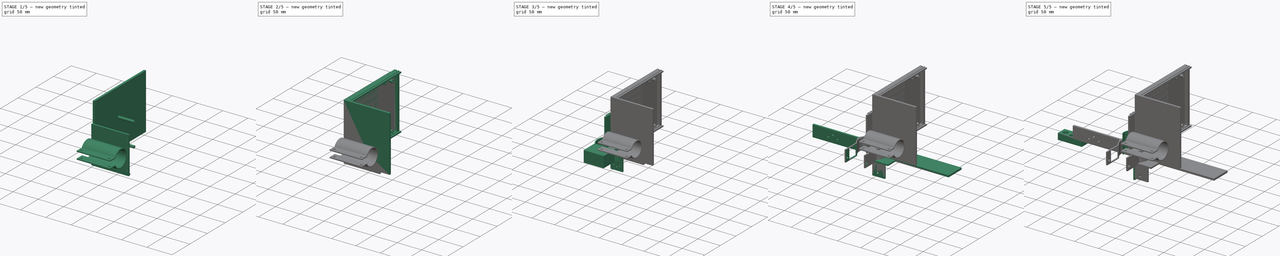
[diagram: build sequence overview — one tinted view per stage of 5, left to right]
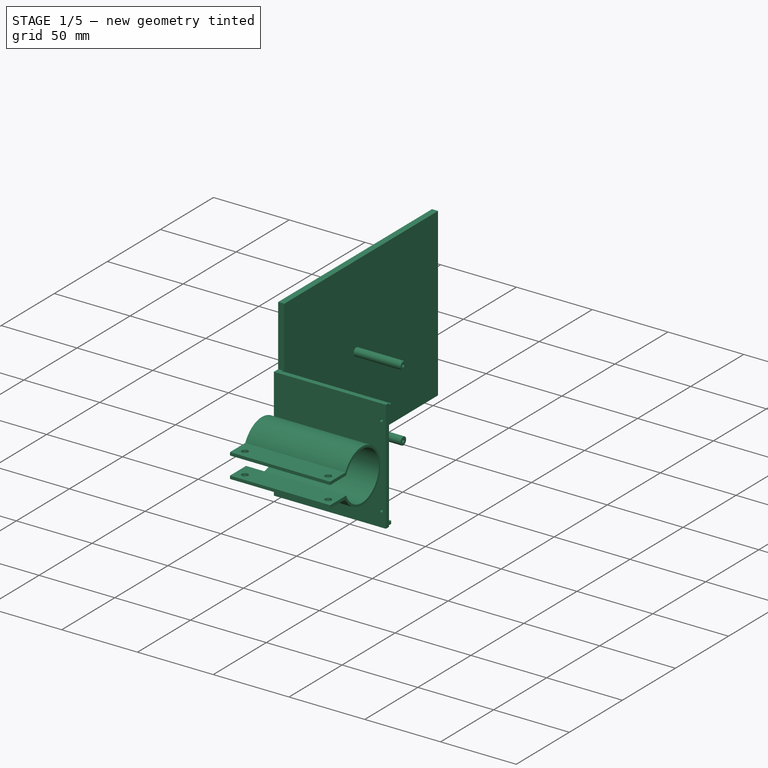
[diagram: stage 1 of 5 — iso view after this stage's code; geometry added in this stage tinted green]
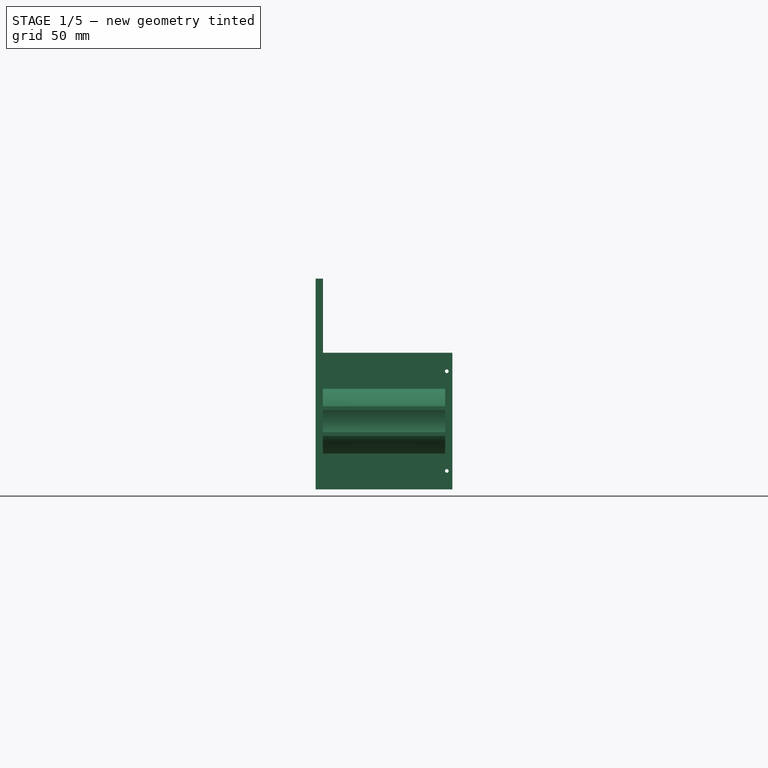
[diagram: stage 1 of 5 — front view after this stage's code; geometry added in this stage tinted green]
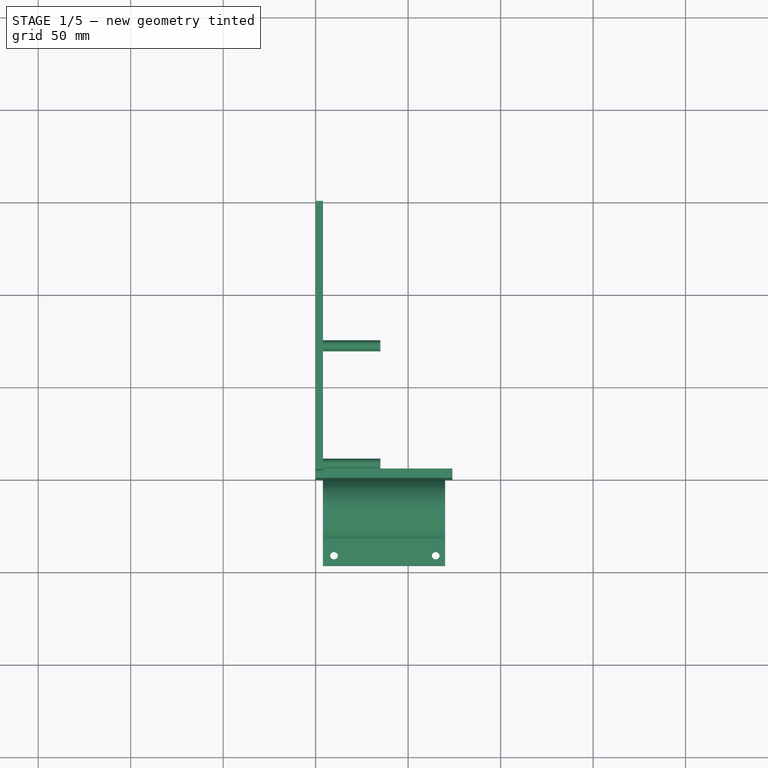
[diagram: stage 1 of 5 — top view after this stage's code; geometry added in this stage tinted green]
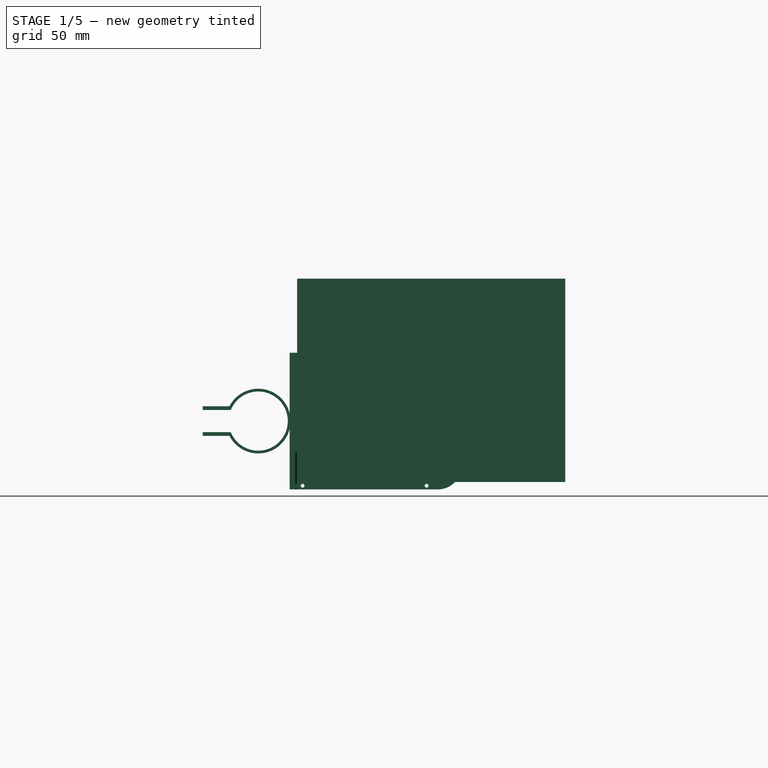
[diagram: stage 1 of 5 — right view after this stage's code; geometry added in this stage tinted green]
FCSTD DOCUMENT  (FreeCAD 1.0R38641 +468 (Git))
Label: TelescopeProject
License: All rights reserved
LicenseURL: https://en.wikipedia.org/wiki/All_rights_reserved
objects: Sketcher::SketchObject×57, PartDesign::Pad×36, PartDesign::Pocket×23, PartDesign::Body×11, PartDesign::LinearPattern×2, PartDesign::MultiTransform×1
note: 308 computed .brp shape members not serialized (recipe doc carries the construction recipe); baked Part::Feature solids carry a one-line shape summary decoded from their .brp

FEATURE [PartDesign::Body] Body010  label="L-Grabber-RA_discarded"
  AllowCompound = false
  Group = -> [Sketch089,Sketch088,Pad036,Pad037,Sketch090,Pad038,Sketch092,Sketch093,Pad039,Pad040,Sketch094,Pad041,Sketch095,Pocket048,Sketch096,Pocket049,Sketch097,Pad042]
  Origin = -> Origin010
  Placement = pos=(-70,7,0) rot=(-0.58,-0.58,0.58;2.09387rad)
  Tip = -> Pad042
FEATURE [Sketcher::SketchObject] Sketch192  label="pb-bottom001"
  ArcFitTolerance = 1e-06
  AttachmentSupport = -> [YZ_Plane021]
  FullyConstrained = true
  MakeInternals = false
  MapMode = 5
  Placement = pos=(0,0,0) rot=(0.57735,0.57735,0.57735;2.0944rad)
  sketch-geometry (4):
    g0: LineSegment StartX=4 StartY=114 StartZ=0 EndX=4 EndY=4 EndZ=0
    g1: LineSegment StartX=4 StartY=4 StartZ=0 EndX=149 EndY=4 EndZ=0
    g2: LineSegment StartX=149 StartY=4 StartZ=0 EndX=149 EndY=114 EndZ=0
    g3: LineSegment StartX=149 StartY=114 StartZ=0 EndX=4 EndY=114 EndZ=0
  constraints (12):
    c: Coincident(g0,g1)
    c: Coincident(g1,g2)
    c: Coincident(g2,g3)
    c: Coincident(g3,g0)
    c: Vertical(g0)
    c: Vertical(g2)
    c: Horizontal(g1)
    c: Horizontal(g3)
    c: Distance(g0,g2) = 145
    c: Distance(g1,g3) = 110
    c: DistanceY(g-1,g0) = 4
    c: DistanceX(g-1,g0) = 4
FEATURE [PartDesign::Pad] Pad094
  Direction = (1,0,0)
  Length = 4
  Length2 = 10
  Placement = pos=(0,0,0) rot=(1,1,1;2.0944rad)
  Profile = -> Sketch192
  ReferenceAxis = -> Sketch192 [N_Axis]
  Refine = true
  Suppressed = false
  Type = 0
FEATURE [PartDesign::Body] Body021  label="Power-Box-Base_discarded"
  AllowCompound = false
  Group = -> [Sketch192,Pad094,Sketch193,Pad095,Sketch194,Pocket114,Sketch195,Sketch196,Pad096,Sketch197,Pocket115,Sketch198,Pad097,Sketch199,Pad098,Sketch200,Sketch201,Sketch202,Sketch203,Sketch204,Pad099,Pocket116,Pad100,Pocket117,Pocket118,MultiTransform004,LinearPattern008,LinearPattern009]
  Origin = -> Origin021
  Tip = -> MultiTransform004
FEATURE [Sketcher::SketchObject] Sketch206  label="pin"
  ArcFitTolerance = 1e-06
  AttachmentSupport = -> [XY_Plane022]
  FullyConstrained = false
  MakeInternals = false
  MapMode = 5
  sketch-geometry (1):
    g0: Circle CenterX=4.17307 CenterY=2.45272 CenterZ=0 NormalX=0 NormalY=0 NormalZ=1 AngleXU=0 Radius=1.4
  constraints (1):
    c: Diameter(g0) = 2.8
FEATURE [PartDesign::Pad] Pad102
  Direction = (0,0,1)
  Length = 20
  Length2 = 10
  Profile = -> Sketch206
  ReferenceAxis = -> Sketch206 [N_Axis]
  Refine = true
  Suppressed = false
  Type = 0
FEATURE [PartDesign::Body] Body022  label="Pin"
  AllowCompound = false
  Group = -> [Sketch206,Pad102]
  Origin = -> Origin022
  Tip = -> Pad102
FEATURE [Sketcher::SketchObject] Sketch105
  ArcFitTolerance = 1e-06
  AttachmentSupport = -> [XY_Plane012]
  FullyConstrained = true
  MakeInternals = false
  MapMode = 5
  sketch-geometry (4):
    g0: LineSegment StartX=0 StartY=0 StartZ=0 EndX=73.9 EndY=0 EndZ=0
    g1: LineSegment StartX=73.9 StartY=0 StartZ=0 EndX=73.9 EndY=3 EndZ=0
    g2: LineSegment StartX=73.9 StartY=3 StartZ=0 EndX=0 EndY=3 EndZ=0
    g3: LineSegment StartX=0 StartY=3 StartZ=0 EndX=0 EndY=0 EndZ=0
  constraints (11):
    c: Coincident(g0,g1)
    c: Coincident(g1,g2)
    c: Coincident(g2,g3)
    c: Coincident(g3,g0)
    c: Horizontal(g0)
    c: Horizontal(g2)
    c: Vertical(g1)
    c: Vertical(g3)
    c: Distance(g1,g3) = 73.9
    c: Distance(g0,g2) = 3
    c: Coincident(g0,g-1)
FEATURE [PartDesign::Pad] Pad050
  Direction = (0,0,1)
  Length = 73.9
  Length2 = 10
  Profile = -> Sketch105
  ReferenceAxis = -> Sketch105 [N_Axis]
  Refine = true
  Suppressed = false
  Type = 0
FEATURE [Sketcher::SketchObject] Sketch108
  ArcFitTolerance = 1e-06
  AttachmentSupport = -> [YZ_Plane012]
  FullyConstrained = true
  MakeInternals = false
  MapMode = 5
  Placement = pos=(0,0,0) rot=(0.57735,0.57735,0.57735;2.0944rad)
  sketch-geometry (12):
    g0: LineSegment StartX=3 StartY=0 StartZ=0 EndX=80 EndY=0 EndZ=0
    g1: LineSegment StartX=93 StartY=13 StartZ=0 EndX=93 EndY=60.9 EndZ=0
    g2: LineSegment StartX=80 StartY=73.9 StartZ=0 EndX=3 EndY=73.9 EndZ=0
    g3: LineSegment StartX=3 StartY=73.9 StartZ=0 EndX=3 EndY=0 EndZ=0
    g4: ArcOfCircle CenterX=80 CenterY=60.9 CenterZ=0 NormalX=0 NormalY=0 NormalZ=1 AngleXU=0 Radius=13 StartAngle=0 EndAngle=1.5708
    g5: GeomPoint [constr] X=93 Y=73.9 Z=0
    g6: ArcOfCircle CenterX=80 CenterY=13 CenterZ=0 NormalX=0 NormalY=0 NormalZ=1 AngleXU=0 Radius=13 StartAngle=4.71239 EndAngle=6.28319
    g7: GeomPoint [constr] X=93 Y=0 Z=0
    g8: Circle CenterX=7 CenterY=2 CenterZ=0 NormalX=0 NormalY=0 NormalZ=1 AngleXU=0 Radius=1
    g9: Circle CenterX=74 CenterY=2 CenterZ=0 NormalX=0 NormalY=0 NormalZ=1 AngleXU=0 Radius=1
    g10: Circle CenterX=7 CenterY=71.9 CenterZ=0 NormalX=0 NormalY=0 NormalZ=1 AngleXU=0 Radius=1
    g11: Circle CenterX=74 CenterY=71.9 CenterZ=0 NormalX=0 NormalY=0 NormalZ=1 AngleXU=0 Radius=1
  constraints (32):
    c: Coincident(g2,g3)
    c: Coincident(g3,g0)
    c: Horizontal(g0)
    c: Horizontal(g2)
    c: Vertical(g1)
    c: Vertical(g3)
    c: Distance(g7,g3) = 90
    c: Distance(g0,g2) = 73.9
    c: PointOnObject(g5,g1)
    c: PointOnObject(g5,g2)
    c: Tangent(g1,g4) = -1.5708
    c: Tangent(g2,g4) = -1.5708
    c: PointOnObject(g7,g0)
    c: PointOnObject(g7,g1)
    c: Tangent(g0,g6) = -1.5708
    c: Tangent(g1,g6) = -1.5708
    c: DistanceX(g-1,g0) = 3
    c: DistanceY(g-1,g0) = 0
    c: DistanceX(g-1,g6) = 80
    c: DistanceX(g-1,g4) = 80
    c: Diameter(g8) = 2
    c: DistanceX(g-1,g8) = 7
    c: DistanceY(g-1,g8) = 2
    c: Diameter(g9) = 2
    c: DistanceY(g8,g9) = 0
    c: DistanceX(g-1,g9) = 74
    c: Diameter(g10) = 2
    c: Diameter(g11) = 2
    c: DistanceX(g8,g10) = 0
    c: DistanceX(g11,g9) = 0
    c: DistanceY(g10,g11) = 0
    c: DistanceY(g-1,g10) = 71.9
FEATURE [PartDesign::Pad] Pad052
  BaseFeature = -> Pad050
  Direction = (1,0,0)
  Length = 3
  Length2 = 10
  Profile = -> Sketch108
  ReferenceAxis = -> Sketch108 [N_Axis]
  Refine = true
  Suppressed = false
  Type = 0
FEATURE [Sketcher::SketchObject] Sketch109
  ArcFitTolerance = 1e-06
  FullyConstrained = true
  MakeInternals = false
  MapMode = 5
  Placement = pos=(0,3,0) rot=(0,0.707107,0.707107;3.14159rad)
  sketch-geometry (8):
    g0: LineSegment StartX=-3 StartY=3 StartZ=0 EndX=-73.9 EndY=3 EndZ=0
    g1: LineSegment StartX=-73.9 StartY=3 StartZ=0 EndX=-73.9 EndY=1 EndZ=0
    g2: LineSegment StartX=-73.9 StartY=1 StartZ=0 EndX=-3 EndY=1 EndZ=0
    g3: LineSegment StartX=-3 StartY=1 StartZ=0 EndX=-3 EndY=3 EndZ=0
    g4: LineSegment StartX=-73.9 StartY=72.9 StartZ=0 EndX=-73.9 EndY=70.9 EndZ=0
    g5: LineSegment StartX=-73.9 StartY=70.9 StartZ=0 EndX=-3 EndY=70.9 EndZ=0
    g6: LineSegment StartX=-3 StartY=70.9 StartZ=0 EndX=-3 EndY=72.9 EndZ=0
    g7: LineSegment StartX=-3 StartY=72.9 StartZ=0 EndX=-73.9 EndY=72.9 EndZ=0
  constraints (24):
    c: Coincident(g0,g1)
    c: Coincident(g1,g2)
    c: Coincident(g2,g3)
    c: Coincident(g3,g0)
    c: Horizontal(g0)
    c: Horizontal(g2)
    c: Vertical(g1)
    c: Vertical(g3)
    c: Distance(g1,g3) = 70.9
    c: Distance(g0,g2) = 2
    c: DistanceY(g-1,g2) = 1
    c: DistanceX(g0,g-1) = 3
    c: Coincident(g4,g5)
    c: Coincident(g5,g6)
    c: Coincident(g6,g7)
    c: Coincident(g7,g4)
    c: Vertical(g4)
    c: Vertical(g6)
    c: Horizontal(g5)
    c: Horizontal(g7)
    c: Distance(g4,g6) = 70.9
    c: Distance(g5,g7) = 2
    c: DistanceY(g-1,g6) = 72.9
    c: DistanceX(g5,g-1) = 3
FEATURE [PartDesign::Pad] Pad053
  BaseFeature = -> Pad052
  Direction = (1e-16,1,-2e-16)
  Length = 2
  Length2 = 10
  Profile = -> Sketch109
  ReferenceAxis = -> Sketch109 [N_Axis]
  Refine = true
  Suppressed = false
  Type = 0
FEATURE [Sketcher::SketchObject] Sketch110  label="screw-towers"
  ArcFitTolerance = 1e-06
  AttachmentSupport = -> [YZ_Plane012]
  FullyConstrained = true
  MakeInternals = false
  MapMode = 5
  Placement = pos=(0,0,0) rot=(0.57735,0.57735,0.57735;2.0944rad)
  sketch-geometry (4):
    g0: Circle CenterX=72 CenterY=14.45 CenterZ=0 NormalX=0 NormalY=0 NormalZ=1 AngleXU=0 Radius=2.6
    g1: Circle CenterX=8 CenterY=14.45 CenterZ=0 NormalX=0 NormalY=0 NormalZ=1 AngleXU=0 Radius=2.6
    g2: Circle CenterX=8 CenterY=59.45 CenterZ=0 NormalX=0 NormalY=0 NormalZ=1 AngleXU=0 Radius=2.6
    g3: Circle CenterX=72 CenterY=59.45 CenterZ=0 NormalX=0 NormalY=0 NormalZ=1 AngleXU=0 Radius=2.6
  constraints (12):
    c: Diameter(g0) = 5.2
    c: DistanceX(g-1,g0) = 72
    c: Diameter(g1) = 5.2
    c: DistanceX(g-1,g1) = 8
    c: DistanceY(g0,g1) = 0
    c: DistanceY(g-1,g1) = 14.45
    c: Diameter(g2) = 5.2
    c: DistanceY(g1,g2) = 45
    c: DistanceX(g1,g2) = 0
    c: Diameter(g3) = 5.2
    c: DistanceX(g3,g0) = 0
    c: DistanceY(g3,g2) = 0
FEATURE [PartDesign::Pad] Pad056
  BaseFeature = -> Pad053
  Direction = (1,0,0)
  Length = 35
  Length2 = 10
  Profile = -> Sketch110
  ReferenceAxis = -> Sketch110 [N_Axis]
  Refine = true
  Suppressed = false
  Type = 0
FEATURE [Sketcher::SketchObject] Sketch111
  ArcFitTolerance = 1e-06
  FullyConstrained = true
  MakeInternals = false
  MapMode = 5
  Placement = pos=(35,0,0) rot=(0.57735,0.57735,0.57735;2.0944rad)
  sketch-geometry (4):
    g0: Circle CenterX=8 CenterY=14.45 CenterZ=0 NormalX=0 NormalY=0 NormalZ=1 AngleXU=0 Radius=1.05
    g1: Circle CenterX=72 CenterY=14.45 CenterZ=0 NormalX=0 NormalY=0 NormalZ=1 AngleXU=0 Radius=1.05
    g2: Circle CenterX=8 CenterY=59.45 CenterZ=0 NormalX=0 NormalY=0 NormalZ=1 AngleXU=0 Radius=1.05
    g3: Circle CenterX=72 CenterY=59.45 CenterZ=0 NormalX=0 NormalY=0 NormalZ=1 AngleXU=0 Radius=1.05
  constraints (12):
    c: Diameter(g0) = 2.1
    c: DistanceX(g0) = 8
    c: DistanceY(g-1,g0) = 14.45
    c: Diameter(g1) = 2.1
    c: DistanceX(g-1,g1) = 72
    c: DistanceY(g1,g0) = 0
    c: Diameter(g2) = 2.1
    c: DistanceX(g0,g2) = 0
    c: DistanceY(g0,g2) = 45
    c: Diameter(g3) = 2.1
    c: DistanceX(g1,g3) = 0
    c: DistanceY(g2,g3) = 0
FEATURE [PartDesign::Pocket] Pocket060
  BaseFeature = -> Pad056
  Direction = (-1,-1e-16,1e-16)
  Length = 8
  Length2 = 5
  Profile = -> Sketch111
  ReferenceAxis = -> Sketch111 [N_Axis]
  Refine = true
  Suppressed = false
  Type = 0
FEATURE [Sketcher::SketchObject] Sketch125
  ArcFitTolerance = 1e-06
  AttachmentSupport = -> [YZ_Plane012]
  FullyConstrained = true
  MakeInternals = false
  MapMode = 5
  Placement = pos=(0,0,0) rot=(0.57735,0.57735,0.57735;2.0944rad)
  sketch-geometry (2):
    g0: GeomPoint X=-17 Y=36.95 Z=0
    g1: Circle CenterX=-17 CenterY=36.95 CenterZ=0 NormalX=0 NormalY=0 NormalZ=1 AngleXU=0 Radius=17.5
  constraints (4):
    c: DistanceY(g-1,g0) = 36.95
    c: DistanceX(g0,g-1) = 17
    c: Diameter(g1) = 35
    c: Coincident(g1,g0)
FEATURE [PartDesign::Pad] Pad060
  BaseFeature = -> Pocket060
  Direction = (1,0,0)
  Length = 70
  Length2 = -3.9
  Profile = -> Sketch125
  ReferenceAxis = -> Sketch125 [N_Axis]
  Refine = true
  Suppressed = false
  Type = 4
FEATURE [Sketcher::SketchObject] Sketch126
  ArcFitTolerance = 1e-06
  AttachmentSupport = -> [YZ_Plane012]
  FullyConstrained = false
  MakeInternals = false
  MapMode = 5
  Placement = pos=(0,0,0) rot=(0.57735,0.57735,0.57735;2.0944rad)
  sketch-geometry (5):
    g0: Circle CenterX=-17 CenterY=36.95 CenterZ=0 NormalX=0 NormalY=0 NormalZ=1 AngleXU=0 Radius=16
    g1: LineSegment StartX=-42.1806 StartY=42.95 StartZ=0 EndX=-42.1806 EndY=30.95 EndZ=0
    g2: LineSegment StartX=-42.1806 StartY=30.95 StartZ=0 EndX=-12.1806 EndY=30.95 EndZ=0
    g3: LineSegment StartX=-12.1806 StartY=30.95 StartZ=0 EndX=-12.1806 EndY=42.95 EndZ=0
    g4: LineSegment StartX=-12.1806 StartY=42.95 StartZ=0 EndX=-42.1806 EndY=42.95 EndZ=0
  constraints (14):
    c: DistanceX(g0) = -17
    c: DistanceY(g-1,g0) = 36.95
    c: Diameter(g0) = 32
    c: Coincident(g1,g2)
    c: Coincident(g2,g3)
    c: Coincident(g3,g4)
    c: Coincident(g4,g1)
    c: Vertical(g1)
    c: Vertical(g3)
    c: Horizontal(g2)
    c: Horizontal(g4)
    c: Distance(g1,g3) = 30
    c: Distance(g2,g4) = 12
    c: DistanceY(g-1,g1) = 30.95
FEATURE [PartDesign::Pocket] Pocket075
  BaseFeature = -> Pad060
  Direction = (-1,0,0)
  Length = 5
  Length2 = 5
  Profile = -> Sketch126
  ReferenceAxis = -> Sketch126 [N_Axis]
  Refine = true
  Reversed = true
  Suppressed = false
  Type = 1
FEATURE [Sketcher::SketchObject] Sketch127
  ArcFitTolerance = 1e-06
  AttachmentSupport = -> [YZ_Plane012]
  FullyConstrained = true
  MakeInternals = false
  MapMode = 5
  Placement = pos=(0,0,0) rot=(0.57735,0.57735,0.57735;2.0944rad)
  sketch-geometry (8):
    g0: LineSegment StartX=-47 StartY=44.95 StartZ=0 EndX=-47 EndY=42.95 EndZ=0
    g1: LineSegment StartX=-47 StartY=42.95 StartZ=0 EndX=-32 EndY=42.95 EndZ=0
    g2: LineSegment StartX=-32 StartY=42.95 StartZ=0 EndX=-32 EndY=44.95 EndZ=0
    g3: LineSegment StartX=-32 StartY=44.95 StartZ=0 EndX=-47 EndY=44.95 EndZ=0
    g4: LineSegment StartX=-47 StartY=30.95 StartZ=0 EndX=-47 EndY=28.95 EndZ=0
    g5: LineSegment StartX=-47 StartY=28.95 StartZ=0 EndX=-32 EndY=28.95 EndZ=0
    g6: LineSegment StartX=-32 StartY=28.95 StartZ=0 EndX=-32 EndY=30.95 EndZ=0
    g7: LineSegment StartX=-32 StartY=30.95 StartZ=0 EndX=-47 EndY=30.95 EndZ=0
  constraints (24):
    c: Coincident(g0,g1)
    c: Coincident(g1,g2)
    c: Coincident(g2,g3)
    c: Coincident(g3,g0)
    c: Vertical(g0)
    c: Vertical(g2)
    c: Horizontal(g1)
    c: Horizontal(g3)
    c: Distance(g0,g2) = 15
    c: Distance(g1,g3) = 2
    c: DistanceX(g1,g-1) = 32
    c: DistanceY(g-1,g1) = 42.95
    c: Coincident(g4,g5)
    c: Coincident(g5,g6)
    c: Coincident(g6,g7)
    c: Coincident(g7,g4)
    c: Vertical(g4)
    c: Vertical(g6)
    c: Horizontal(g5)
    c: Horizontal(g7)
    c: Distance(g4,g6) = 15
    c: Distance(g5,g7) = 2
    c: DistanceX(g5,g-1) = 32
    c: DistanceY(g-1,g6) = 30.95
FEATURE [PartDesign::Pad] Pad061
  BaseFeature = -> Pocket075
  Direction = (1,0,0)
  Length = 70
  Length2 = -3.9
  Profile = -> Sketch127
  ReferenceAxis = -> Sketch127 [N_Axis]
  Refine = true
  Suppressed = false
  Type = 4
FEATURE [Sketcher::SketchObject] Sketch128
  ArcFitTolerance = 1e-06
  AttachmentSupport = -> [XY_Plane012]
  FullyConstrained = true
  MakeInternals = false
  MapMode = 5
  sketch-geometry (2):
    g0: Circle CenterX=9.9 CenterY=-41.5 CenterZ=0 NormalX=0 NormalY=0 NormalZ=1 AngleXU=0 Radius=2.1
    g1: Circle CenterX=64.9 CenterY=-41.5 CenterZ=0 NormalX=0 NormalY=0 NormalZ=1 AngleXU=0 Radius=2.1
  constraints (6):
    c: Diameter(g0) = 4.2
    c: DistanceY(g0,g-1) = 41.5
    c: Diameter(g1) = 4.2
    c: DistanceY(g1,g-1) = 41.5
    c: DistanceX(g-1,g0) = 9.9
    c: DistanceX(g0,g1) = 55
FEATURE [PartDesign::Pocket] Pocket076
  BaseFeature = -> Pad061
  Direction = (0,0,-1)
  Length = 5
  Length2 = 5
  Profile = -> Sketch128
  ReferenceAxis = -> Sketch128 [N_Axis]
  Refine = true
  Reversed = true
  Suppressed = false
  Type = 1
FEATURE [Sketcher::SketchObject] Sketch129
  ArcFitTolerance = 1e-06
  AttachmentSupport = -> [XZ_Plane012]
  FullyConstrained = true
  MakeInternals = false
  MapMode = 5
  Placement = pos=(0,0,0) rot=(1,0,0;1.5708rad)
  sketch-geometry (2):
    g0: Circle CenterX=70.9 CenterY=10 CenterZ=0 NormalX=0 NormalY=0 NormalZ=1 AngleXU=0 Radius=1
    g1: Circle CenterX=70.9 CenterY=63.9 CenterZ=0 NormalX=0 NormalY=0 NormalZ=1 AngleXU=0 Radius=1
  constraints (6):
    c: Diameter(g0) = 2
    c: DistanceX(g-1,g0) = 70.9
    c: DistanceY(g-1,g0) = 10
    c: Diameter(g1) = 2
    c: DistanceY(g-1,g1) = 63.9
    c: DistanceX(g1,g0) = 0
FEATURE [PartDesign::Pocket] Pocket077
  BaseFeature = -> Pocket076
  Direction = (0,1,-2e-16)
  Length = 5
  Length2 = 5
  Profile = -> Sketch129
  ReferenceAxis = -> Sketch129 [N_Axis]
  Refine = true
  Suppressed = false
  Type = 0
FEATURE [PartDesign::Body] Body012  label="EC-Box-bottom_discarded"
  AllowCompound = false
  Group = -> [Sketch105,Sketch108,Pad050,Sketch109,Sketch110,Sketch111,Pad052,Pad053,Pad056,Pocket060,Sketch125,Sketch126,Sketch127,Sketch128,Sketch129,Pad060,Pocket075,Pad061,Pocket076,Pocket077]
  Origin = -> Origin012
  Tip = -> Pocket077
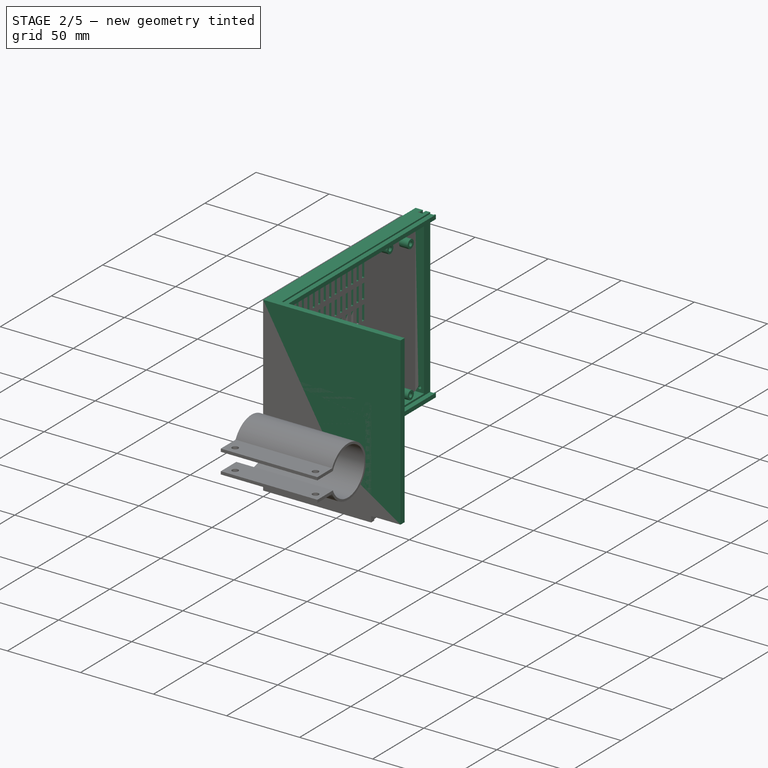
[diagram: stage 2 of 5 — iso view after this stage's code; geometry added in this stage tinted green]
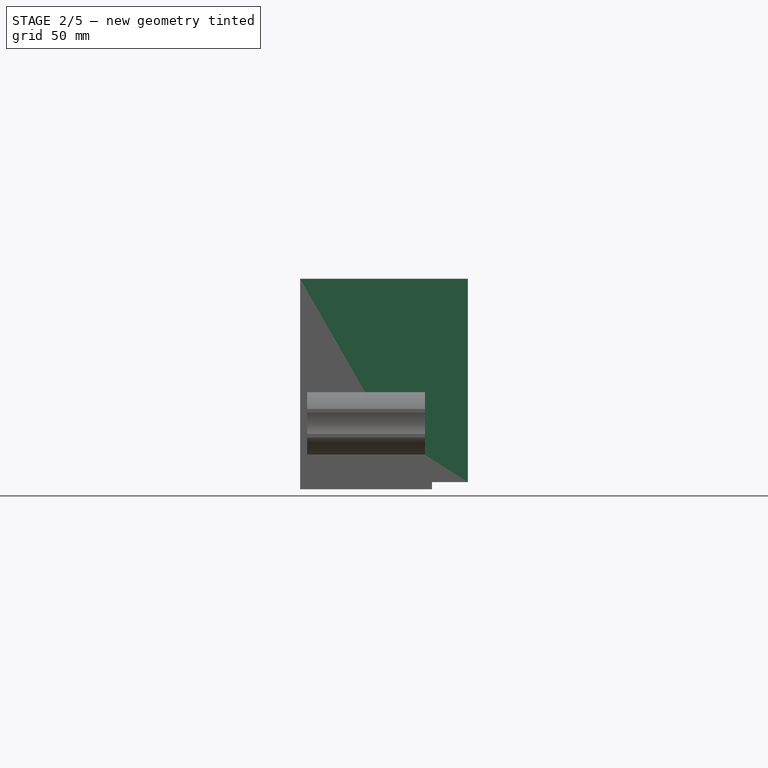
[diagram: stage 2 of 5 — front view after this stage's code; geometry added in this stage tinted green]
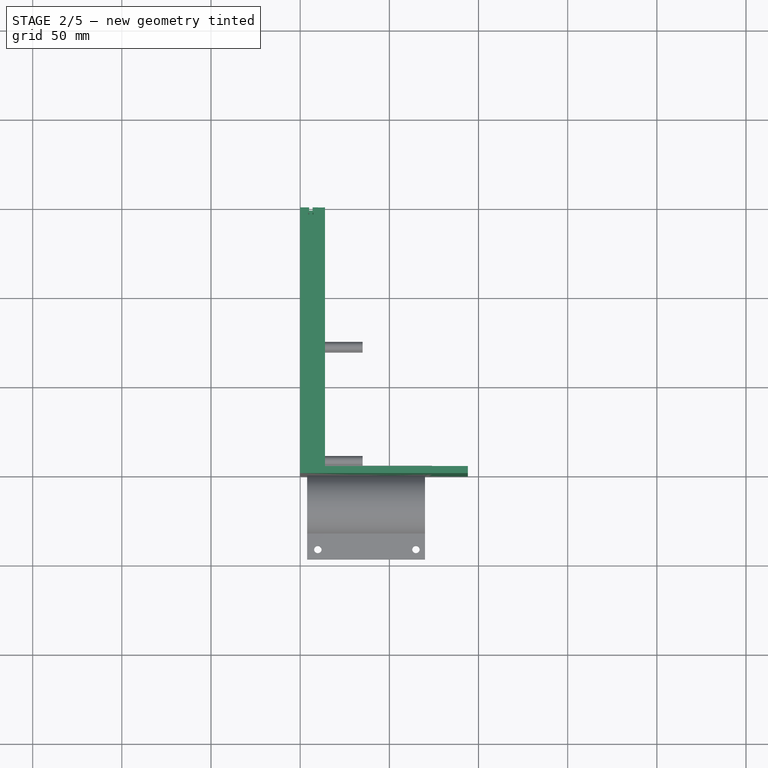
[diagram: stage 2 of 5 — top view after this stage's code; geometry added in this stage tinted green]
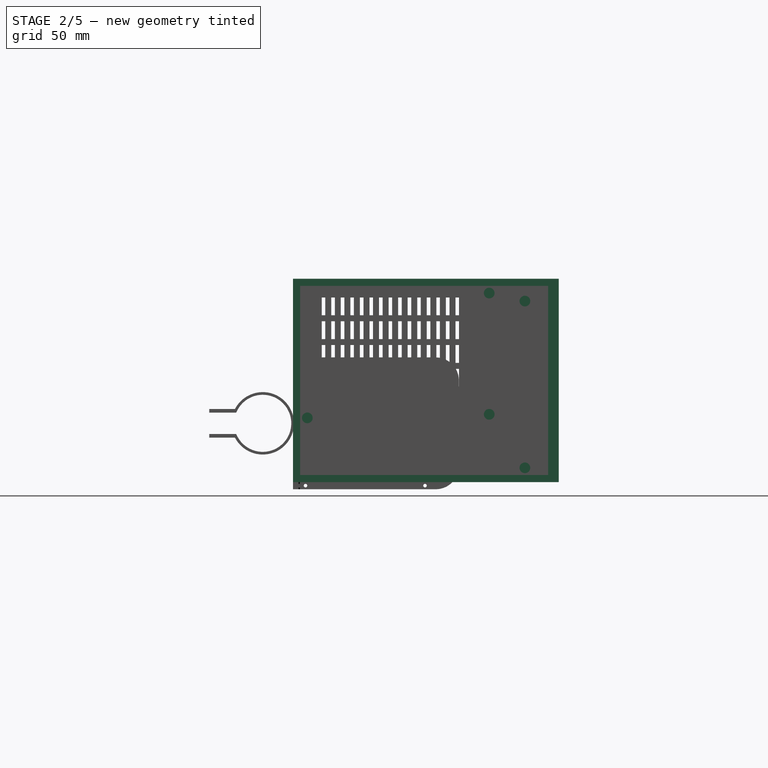
[diagram: stage 2 of 5 — right view after this stage's code; geometry added in this stage tinted green]
FEATURE [Sketcher::SketchObject] Sketch193  label="pb-back001"
  ArcFitTolerance = 1e-06
  AttachmentSupport = -> [XZ_Plane021]
  FullyConstrained = true
  MakeInternals = false
  MapMode = 5
  Placement = pos=(0,0,0) rot=(1,0,0;1.5708rad)
  sketch-geometry (10):
    g0: LineSegment StartX=0 StartY=118 StartZ=0 EndX=0 EndY=4 EndZ=0
    g1: LineSegment StartX=0 StartY=4 StartZ=0 EndX=94 EndY=4 EndZ=0
    g2: LineSegment StartX=94 StartY=4 StartZ=0 EndX=94 EndY=118 EndZ=0
    g3: LineSegment StartX=94 StartY=118 StartZ=0 EndX=0 EndY=118 EndZ=0
    g4: LineSegment StartX=20 StartY=33.05 StartZ=0 EndX=20 EndY=8.95 EndZ=0
    g5: LineSegment StartX=20 StartY=8.95 StartZ=0 EndX=48.7 EndY=8.95 EndZ=0
    g6: LineSegment StartX=48.7 StartY=8.95 StartZ=0 EndX=48.7 EndY=33.05 EndZ=0
    g7: LineSegment StartX=48.7 StartY=33.05 StartZ=0 EndX=20 EndY=33.05 EndZ=0
    g8: Circle CenterX=16 CenterY=21 CenterZ=0 NormalX=0 NormalY=0 NormalZ=1 AngleXU=0 Radius=1.75
    g9: Circle CenterX=52.7 CenterY=21 CenterZ=0 NormalX=0 NormalY=0 NormalZ=1 AngleXU=0 Radius=1.75
  constraints (30):
    c: Coincident(g0,g1)
    c: Coincident(g1,g2)
    c: Coincident(g2,g3)
    c: Coincident(g3,g0)
    c: Vertical(g0)
    c: Vertical(g2)
    c: Horizontal(g1)
    c: Horizontal(g3)
    c: Distance(g0,g2) = 94
    c: Distance(g1,g3) = 114
    c: DistanceX(g-1,g0) = 0
    c: DistanceY(g-1,g0) = 4
    c: Coincident(g4,g5)
    c: Coincident(g5,g6)
    c: Coincident(g6,g7)
    c: Coincident(g7,g4)
    c: Vertical(g4)
    c: Vertical(g6)
    c: Horizontal(g5)
    c: Horizontal(g7)
    c: Distance(g4,g6) = 28.7
    c: Distance(g5,g7) = 24.1
    c: DistanceY(g-1,g4) = 8.95
    c: DistanceX(g-1,g4) = 20
    c: Diameter(g8) = 3.5
    c: DistanceX(g-1,g8) = 16
    c: DistanceY(g-1,g8) = 21
    c: Diameter(g9) = 3.5
    c: DistanceY(g8,g9) = 0
    c: DistanceX(g-1,g9) = 52.7
FEATURE [PartDesign::Pad] Pad095
  BaseFeature = -> Pad094
  Direction = (0,-1,2e-16)
  Length = 4
  Length2 = 10
  Placement = pos=(0,0,0) rot=(1,1,1;2.0944rad)
  Profile = -> Sketch193
  ReferenceAxis = -> Sketch193 [N_Axis]
  Refine = true
  Reversed = true
  Suppressed = false
  Type = 0
FEATURE [Sketcher::SketchObject] Sketch194  label="pb-bottom-holes001"
  ArcFitTolerance = 1e-06
  AttachmentSupport = -> [YZ_Plane021]
  FullyConstrained = true
  MakeInternals = false
  MapMode = 5
  Placement = pos=(0,0,0) rot=(0.57735,0.57735,0.57735;2.0944rad)
  sketch-geometry (2):
    g0: Circle CenterX=72.5 CenterY=50 CenterZ=0 NormalX=0 NormalY=0 NormalZ=1 AngleXU=0 Radius=2
    g1: Circle CenterX=72.5 CenterY=20 CenterZ=0 NormalX=0 NormalY=0 NormalZ=1 AngleXU=0 Radius=2
  constraints (6):
    c: Diameter(g0) = 4
    c: Diameter(g1) = 4
    c: DistanceX(g-1,g0) = 72.5
    c: DistanceY(g1,g0) = 30
    c: DistanceX(g0,g1) = 0
    c: DistanceY(g-1,g0) = 50
FEATURE [PartDesign::Pocket] Pocket114
  BaseFeature = -> Pad095
  Direction = (-1,0,0)
  Length = 5
  Length2 = 5
  Placement = pos=(0,0,0) rot=(1,1,1;2.0944rad)
  Profile = -> Sketch194
  ReferenceAxis = -> Sketch194 [N_Axis]
  Refine = true
  Reversed = true
  Suppressed = false
  Type = 1
FEATURE [Sketcher::SketchObject] Sketch195  label="pb-back-holes001"
  ArcFitTolerance = 1e-06
  AttachmentSupport = -> [Pocket114]
  FullyConstrained = true
  MakeInternals = false
  MapMode = 5
  Placement = pos=(0,4,0) rot=(0.57735,0.57735,0.57735;4.18879rad)
FEATURE [Sketcher::SketchObject] Sketch196  label="pb-bottom-screw-hill001"
  ArcFitTolerance = 1e-06
  AttachmentSupport = -> [YZ_Plane021]
  FullyConstrained = true
  MakeInternals = false
  MapMode = 5
  Placement = pos=(0,0,0) rot=(0.57735,0.57735,0.57735;2.0944rad)
  sketch-geometry (4):
    g0: Circle CenterX=110 CenterY=110 CenterZ=0 NormalX=0 NormalY=0 NormalZ=1 AngleXU=0 Radius=3
    g1: Circle CenterX=8 CenterY=40 CenterZ=0 NormalX=0 NormalY=0 NormalZ=1 AngleXU=0 Radius=3
    g2: Circle CenterX=130 CenterY=105.5 CenterZ=0 NormalX=0 NormalY=0 NormalZ=1 AngleXU=0 Radius=3
    g3: Circle CenterX=130 CenterY=12 CenterZ=0 NormalX=0 NormalY=0 NormalZ=1 AngleXU=0 Radius=3
  constraints (12):
    c: Diameter(g0) = 6
    c: DistanceX(g-1,g0) = 110
    c: DistanceY(g-1,g0) = 110
    c: Diameter(g1) = 6
    c: DistanceX(g-1,g1) = 8
    c: DistanceY(g-1,g1) = 40
    c: Diameter(g2) = 6
    c: Diameter(g3) = 6
    c: DistanceX(g-1,g3) = 130
    c: DistanceX(g3,g2) = 0
    c: DistanceY(g-1,g3) = 12
    c: DistanceY(g3,g2) = 93.5
FEATURE [PartDesign::Pad] Pad096
  BaseFeature = -> Pocket114
  Direction = (1,0,0)
  Length = 10
  Length2 = 10
  Placement = pos=(0,0,0) rot=(1,1,1;2.0944rad)
  Profile = -> Sketch196
  ReferenceAxis = -> Sketch196 [N_Axis]
  Refine = true
  Suppressed = false
  Type = 0
FEATURE [Sketcher::SketchObject] Sketch197  label="pb-bottom-screw-hole001"
  ArcFitTolerance = 1e-06
  AttachmentSupport = -> [Pad096]
  FullyConstrained = true
  MakeInternals = false
  MapMode = 5
  Placement = pos=(10,0,0) rot=(0.57735,0.57735,0.57735;2.0944rad)
  sketch-geometry (4):
    g0: Circle CenterX=110 CenterY=110 CenterZ=0 NormalX=0 NormalY=0 NormalZ=1 AngleXU=0 Radius=1.5
    g1: Circle CenterX=8 CenterY=40 CenterZ=0 NormalX=0 NormalY=0 NormalZ=1 AngleXU=0 Radius=1.5
    g2: Circle CenterX=130 CenterY=12 CenterZ=0 NormalX=0 NormalY=0 NormalZ=1 AngleXU=0 Radius=1.5
    g3: Circle CenterX=130 CenterY=105.5 CenterZ=0 NormalX=0 NormalY=0 NormalZ=1 AngleXU=0 Radius=1.5
  constraints (12):
    c: Diameter(g0) = 3
    c: DistanceX(g-1,g0) = 110
    c: DistanceY(g-1,g0) = 110
    c: Diameter(g1) = 3
    c: DistanceY(g-1,g1) = 40
    c: DistanceX(g-1,g1) = 8
    c: Diameter(g2) = 3
    c: Diameter(g3) = 3
    c: DistanceY(g-1,g2) = 12
    c: DistanceX(g-1,g2) = 130
    c: DistanceX(g3,g2) = 0
    c: DistanceY(g2,g3) = 93.5
FEATURE [PartDesign::Pocket] Pocket115
  BaseFeature = -> Pad096
  Direction = (-1,0,0)
  Length = 5
  Length2 = 5
  Placement = pos=(0,0,0) rot=(1,1,1;2.0944rad)
  Profile = -> Sketch197
  ReferenceAxis = -> Sketch197 [N_Axis]
  Refine = true
  Suppressed = false
  Type = 0
FEATURE [Sketcher::SketchObject] Sketch198  label="pb-bottom-fit-hole-bottom001"
  ArcFitTolerance = 1e-06
  AttachmentSupport = -> [YZ_Plane021]
  FullyConstrained = true
  MakeInternals = false
  MapMode = 5
  Placement = pos=(0,0,0) rot=(0.57735,0.57735,0.57735;2.0944rad)
  sketch-geometry (1):
    g0: Circle CenterX=110 CenterY=42 CenterZ=0 NormalX=0 NormalY=0 NormalZ=1 AngleXU=0 Radius=3
  constraints (3):
    c: Diameter(g0) = 6
    c: DistanceX(g-1,g0) = 110
    c: DistanceY(g-1,g0) = 42
FEATURE [PartDesign::Pad] Pad097
  BaseFeature = -> Pocket115
  Direction = (1,0,0)
  Length = 10
  Length2 = 10
  Placement = pos=(0,0,0) rot=(1,1,1;2.0944rad)
  Profile = -> Sketch198
  ReferenceAxis = -> Sketch198 [N_Axis]
  Refine = true
  Suppressed = false
  Type = 0
FEATURE [Sketcher::SketchObject] Sketch199  label="pb-bottom-fit-hill001"
  ArcFitTolerance = 1e-06
  AttachmentSupport = -> [YZ_Plane021]
  FullyConstrained = true
  MakeInternals = false
  MapMode = 5
  Placement = pos=(0,0,0) rot=(0.57735,0.57735,0.57735;2.0944rad)
  sketch-geometry (1):
    g0: Circle CenterX=110 CenterY=42 CenterZ=0 NormalX=0 NormalY=0 NormalZ=1 AngleXU=0 Radius=1.25
  constraints (3):
    c: Diameter(g0) = 2.5
    c: DistanceX(g-1,g0) = 110
    c: DistanceY(g-1,g0) = 42
FEATURE [PartDesign::Pad] Pad098
  BaseFeature = -> Pad097
  Direction = (1,0,0)
  Length = 12
  Length2 = 10
  Placement = pos=(0,0,0) rot=(1,1,1;2.0944rad)
  Profile = -> Sketch199
  ReferenceAxis = -> Sketch199 [N_Axis]
  Refine = true
  Suppressed = false
  Type = 0
FEATURE [Sketcher::SketchObject] Sketch200  label="pb-front-montage001"
  ArcFitTolerance = 1e-06
  FullyConstrained = true
  MakeInternals = false
  MapMode = 5
  Placement = pos=(2.606e-13,149,-1.965e-13) rot=(0.57735,0.57735,0.57735;4.18879rad)
  sketch-geometry (4):
    g0: LineSegment StartX=4 StartY=10 StartZ=0 EndX=4 EndY=4 EndZ=0
    g1: LineSegment StartX=4 StartY=4 StartZ=0 EndX=114 EndY=4 EndZ=0
    g2: LineSegment StartX=114 StartY=4 StartZ=0 EndX=114 EndY=10 EndZ=0
    g3: LineSegment StartX=114 StartY=10 StartZ=0 EndX=4 EndY=10 EndZ=0
  constraints (12):
    c: Coincident(g0,g1)
    c: Coincident(g1,g2)
    c: Coincident(g2,g3)
    c: Coincident(g3,g0)
    c: Vertical(g0)
    c: Vertical(g2)
    c: Horizontal(g1)
    c: Horizontal(g3)
    c: Distance(g0,g2) = 110
    c: Distance(g1,g3) = 6
    c: DistanceY(g-1,g0) = 4
    c: DistanceX(g-1,g0) = 4
FEATURE [PartDesign::Pad] Pad099
  BaseFeature = -> Pad098
  Direction = (1.8e-15,1,-1.8e-15)
  Length = 6
  Length2 = 10
  Placement = pos=(0,0,0) rot=(1,1,1;2.0944rad)
  Profile = -> Sketch200
  ReferenceAxis = -> Sketch200 [N_Axis]
  Refine = true
  Reversed = true
  Suppressed = false
  Type = 0
FEATURE [Sketcher::SketchObject] Sketch201  label="pb-front-montage-holes001"
  ArcFitTolerance = 1e-06
  FullyConstrained = true
  MakeInternals = false
  MapMode = 5
  Placement = pos=(2.604e-13,149,-1.748e-13) rot=(0.57735,0.57735,0.57735;4.18879rad)
  sketch-geometry (1):
    g0: Circle CenterX=11 CenterY=7 CenterZ=0 NormalX=0 NormalY=0 NormalZ=1 AngleXU=0 Radius=1
  constraints (3):
    c: Diameter(g0) = 2
    c: DistanceY(g-1,g0) = 7
    c: DistanceX(g-1,g0) = 11
FEATURE [PartDesign::Pocket] Pocket116
  BaseFeature = -> Pad099
  Direction = (-1.6e-15,-1,1e-15)
  Length = 7
  Length2 = 5
  Placement = pos=(0,0,0) rot=(1,1,1;2.0944rad)
  Profile = -> Sketch201
  ReferenceAxis = -> Sketch201 [N_Axis]
  Refine = true
  Suppressed = false
  Type = 0
FEATURE [Sketcher::SketchObject] Sketch202  label="pb-bottom-mazgal001"
  ArcFitTolerance = 1e-06
  AttachmentSupport = -> [YZ_Plane021]
  FullyConstrained = false
  MakeInternals = false
  MapMode = 5
  Placement = pos=(0,0,0) rot=(0.57735,0.57735,0.57735;2.0944rad)
  sketch-geometry (4):
    g0: LineSegment StartX=93.0678 StartY=97.5157 StartZ=0 EndX=93.0678 EndY=107.516 EndZ=0
    g1: LineSegment StartX=93.0678 StartY=107.516 StartZ=0 EndX=91.0678 EndY=107.516 EndZ=0
    g2: LineSegment StartX=91.0678 StartY=107.516 StartZ=0 EndX=91.0678 EndY=97.5157 EndZ=0
    g3: LineSegment StartX=91.0678 StartY=97.5157 StartZ=0 EndX=93.0678 EndY=97.5157 EndZ=0
  constraints (10):
    c: Coincident(g0,g1)
    c: Coincident(g1,g2)
    c: Coincident(g2,g3)
    c: Coincident(g3,g0)
    c: Vertical(g0)
    c: Vertical(g2)
    c: Horizontal(g1)
    c: Horizontal(g3)
    c: Distance(g0,g2) = 2
    c: Distance(g1,g3) = 10
FEATURE [PartDesign::LinearPattern] LinearPattern008
  Direction = -> Sketch202 [H_Axis]
  Length = 75
  Mode = 0
  Occurrences = 15
  Offset = 5.35714
  Placement = pos=(0,0,0) rot=(1,1,1;2.0944rad)
  Refine = true
  Reversed = true
  Suppressed = false
  TransformMode = 0
FEATURE [PartDesign::LinearPattern] LinearPattern009
  Direction = -> Sketch202 [V_Axis]
  Length = 40
  Mode = 0
  Occurrences = 4
  Offset = 13.3333
  Placement = pos=(0,0,0) rot=(1,1,1;2.0944rad)
  Refine = true
  Reversed = true
  Suppressed = false
  TransformMode = 0
FEATURE [Sketcher::SketchObject] Sketch203  label="pb-base-front-trail001"
  ArcFitTolerance = 1e-06
  AttachmentSupport = -> [XY_Plane021]
  FullyConstrained = true
  MakeInternals = false
  MapMode = 5
  sketch-geometry (8):
    g0: LineSegment StartX=7.5 StartY=146 StartZ=0 EndX=7.5 EndY=145 EndZ=0
    g1: LineSegment StartX=7.5 StartY=145 StartZ=0 EndX=4.5 EndY=145 EndZ=0
    g2: LineSegment StartX=4.5 StartY=145 StartZ=0 EndX=4.5 EndY=146 EndZ=0
    g3: LineSegment StartX=4.5 StartY=146 StartZ=0 EndX=7.5 EndY=146 EndZ=0
    g4: LineSegment StartX=5 StartY=149 StartZ=0 EndX=7 EndY=149 EndZ=0
    g5: LineSegment StartX=7 StartY=149 StartZ=0 EndX=7 EndY=146 EndZ=0
    g6: LineSegment StartX=7 StartY=146 StartZ=0 EndX=5 EndY=146 EndZ=0
    g7: LineSegment StartX=5 StartY=146 StartZ=0 EndX=5 EndY=149 EndZ=0
  constraints (24):
    c: Coincident(g0,g1)
    c: Coincident(g1,g2)
    c: Coincident(g2,g3)
    c: Coincident(g3,g0)
    c: Vertical(g0)
    c: Vertical(g2)
    c: Horizontal(g1)
    c: Horizontal(g3)
    c: Distance(g0,g2) = 3
    c: Distance(g1,g3) = 1
    c: Coincident(g4,g5)
    c: Coincident(g5,g6)
    c: Coincident(g6,g7)
    c: Coincident(g7,g4)
    c: Horizontal(g4)
    c: Horizontal(g6)
    c: Vertical(g5)
    c: Vertical(g7)
    c: Distance(g5,g7) = 2
    c: Distance(g4,g6) = 3
    c: DistanceY(g-1,g2) = 146
    c: DistanceX(g-1,g2) = 4.5
    c: DistanceX(g-1,g4) = 5
    c: DistanceY(g-1,g4) = 149
FEATURE [Sketcher::SketchObject] Sketch204  label="pb-base-side-trails001"
  ArcFitTolerance = 1e-06
  AttachmentSupport = -> [XZ_Plane021]
  FullyConstrained = true
  MakeInternals = false
  MapMode = 5
  Placement = pos=(0,0,0) rot=(1,0,0;1.5708rad)
  sketch-geometry (24):
    g0: LineSegment StartX=0 StartY=118 StartZ=0 EndX=0 EndY=114 EndZ=0
    g1: LineSegment StartX=0 StartY=114 StartZ=0 EndX=10 EndY=114 EndZ=0
    g2: LineSegment StartX=10 StartY=114 StartZ=0 EndX=10 EndY=118 EndZ=0
    g3: LineSegment StartX=10 StartY=118 StartZ=0 EndX=0 EndY=118 EndZ=0
    g4: LineSegment StartX=10 StartY=117 StartZ=0 EndX=10 EndY=115.2 EndZ=0
    g5: LineSegment StartX=10 StartY=115.2 StartZ=0 EndX=13 EndY=115.2 EndZ=0
    g6: LineSegment StartX=13 StartY=115.2 StartZ=0 EndX=13 EndY=117 EndZ=0
    g7: LineSegment StartX=13 StartY=117 StartZ=0 EndX=10 EndY=117 EndZ=0
    g8: LineSegment StartX=13 StartY=117.5 StartZ=0 EndX=13 EndY=114.7 EndZ=0
    g9: LineSegment StartX=13 StartY=114.7 StartZ=0 EndX=13.9 EndY=114.7 EndZ=0
    g10: LineSegment StartX=13.9 StartY=114.7 StartZ=0 EndX=13.9 EndY=117.5 EndZ=0
    g11: LineSegment StartX=13.9 StartY=117.5 StartZ=0 EndX=13 EndY=117.5 EndZ=0
    g12: LineSegment StartX=0 StartY=8 StartZ=0 EndX=0 EndY=4 EndZ=0
    g13: LineSegment StartX=0 StartY=4 StartZ=0 EndX=10 EndY=4 EndZ=0
    g14: LineSegment StartX=10 StartY=4 StartZ=0 EndX=10 EndY=8 EndZ=0
    g15: LineSegment StartX=10 StartY=8 StartZ=0 EndX=0 EndY=8 EndZ=0
    g16: LineSegment StartX=10 StartY=5 StartZ=0 EndX=10 EndY=6.8 EndZ=0
    g17: LineSegment StartX=10 StartY=6.8 StartZ=0 EndX=13 EndY=6.8 EndZ=0
    g18: LineSegment StartX=13 StartY=6.8 StartZ=0 EndX=13 EndY=5 EndZ=0
    g19: LineSegment StartX=13 StartY=5 StartZ=0 EndX=10 EndY=5 EndZ=0
    g20: LineSegment StartX=13 StartY=7.3 StartZ=0 EndX=13 EndY=4.5 EndZ=0
    g21: LineSegment StartX=13 StartY=4.5 StartZ=0 EndX=13.9 EndY=4.5 EndZ=0
    g22: LineSegment StartX=13.9 StartY=4.5 StartZ=0 EndX=13.9 EndY=7.3 EndZ=0
    g23: LineSegment StartX=13.9 StartY=7.3 StartZ=0 EndX=13 EndY=7.3 EndZ=0
  constraints (72):
    c: Coincident(g0,g1)
    c: Coincident(g1,g2)
    c: Coincident(g2,g3)
    c: Coincident(g3,g0)
    c: Vertical(g0)
    c: Vertical(g2)
    c: Horizontal(g1)
    c: Horizontal(g3)
    c: Distance(g0,g2) = 10
    c: Distance(g1,g3) = 4
    c: DistanceX(g-1,g0) = 0
    c: DistanceY(g-1,g0) = 114
    c: Coincident(g4,g5)
    c: Coincident(g5,g6)
    c: Coincident(g6,g7)
    c: Coincident(g7,g4)
    c: Vertical(g4)
    c: Vertical(g6)
    c: Horizontal(g5)
    c: Horizontal(g7)
    c: Distance(g4,g6) = 3
    c: Distance(g5,g7) = 1.8
    c: DistanceX(g2,g4) = 0
    c: Coincident(g8,g9)
    c: Coincident(g9,g10)
    c: Coincident(g10,g11)
    c: Coincident(g11,g8)
    c: Vertical(g8)
    c: Vertical(g10)
    c: Horizontal(g9)
    c: Horizontal(g11)
    c: Distance(g8,g10) = 0.9
    c: Distance(g9,g11) = 2.8
    c: DistanceX(g6,g8) = 0
    c: DistanceY(g6,g8) = 0.5
    c: DistanceY(g4,g2) = 1
    c: Coincident(g12,g13)
    c: Coincident(g13,g14)
    c: Coincident(g14,g15)
    c: Coincident(g15,g12)
    c: Vertical(g12)
    c: Vertical(g14)
    c: Horizontal(g13)
    c: Horizontal(g15)
    c: Distance(g12,g14) = 10
    c: Distance(g13,g15) = 4
    c: DistanceX(g-1,g12) = 0
    c: DistanceY(g-1,g12) = 4
    c: Coincident(g16,g17)
    c: Coincident(g17,g18)
    c: Coincident(g18,g19)
    c: Coincident(g19,g16)
    c: Vertical(g16)
    c: Vertical(g18)
    c: Horizontal(g17)
    c: Horizontal(g19)
    c: Distance(g16,g18) = 3
    c: Distance(g17,g19) = 1.8
    c: DistanceX(g14,g16) = 0
    c: Coincident(g20,g21)
    c: Coincident(g21,g22)
    c: Coincident(g22,g23)
    c: Coincident(g23,g20)
    c: Vertical(g20)
    c: Vertical(g22)
    c: Horizontal(g21)
    c: Horizontal(g23)
    c: Distance(g20,g22) = 0.9
    c: Distance(g21,g23) = 2.8
    c: DistanceX(g18,g20) = 0
    c: DistanceY(g13,g16) = 1
    c: DistanceY(g20,g18) = 0.5
FEATURE [PartDesign::Pad] Pad100
  BaseFeature = -> Pocket116
  Direction = (0,-1,2e-16)
  Length = 149
  Length2 = 10
  Placement = pos=(0,0,0) rot=(1,1,1;2.0944rad)
  Profile = -> Sketch204
  ReferenceAxis = -> Sketch204 [N_Axis]
  Refine = true
  Reversed = true
  Suppressed = false
  Type = 0
FEATURE [PartDesign::Pocket] Pocket117
  BaseFeature = -> Pad100
  Direction = (0,0,-1)
  Length = 118
  Length2 = -14
  Placement = pos=(0,0,0) rot=(1,1,1;2.0944rad)
  Profile = -> Sketch203
  ReferenceAxis = -> Sketch203 [N_Axis]
  Refine = true
  Reversed = true
  Suppressed = false
  Type = 4
FEATURE [PartDesign::Pocket] Pocket118
  BaseFeature = -> Pocket117
  Direction = (-1,0,0)
  Length = 5
  Length2 = 5
  Placement = pos=(0,0,0) rot=(1,1,1;2.0944rad)
  Profile = -> Sketch202
  ReferenceAxis = -> Sketch202 [N_Axis]
  Refine = true
  Reversed = true
  Suppressed = false
  Type = 0
FEATURE [PartDesign::MultiTransform] MultiTransform004
  BaseFeature = -> Pocket118
  Originals = -> [Pocket118]
  Placement = pos=(0,0,0) rot=(1,1,1;2.0944rad)
  Refine = true
  Suppressed = false
  TransformMode = 0
  Transformations = -> [LinearPattern008,LinearPattern009]
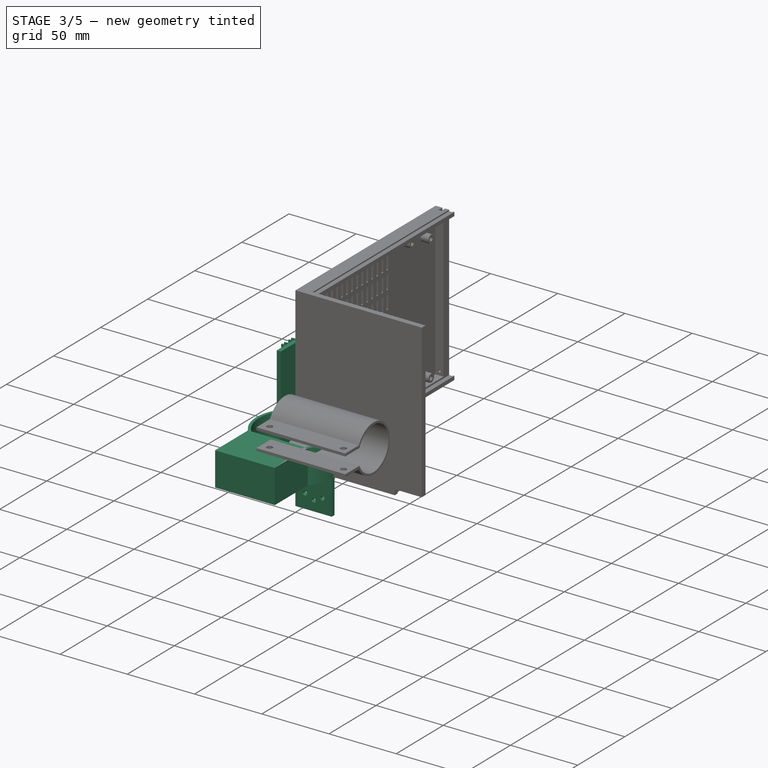
[diagram: stage 3 of 5 — iso view after this stage's code; geometry added in this stage tinted green]
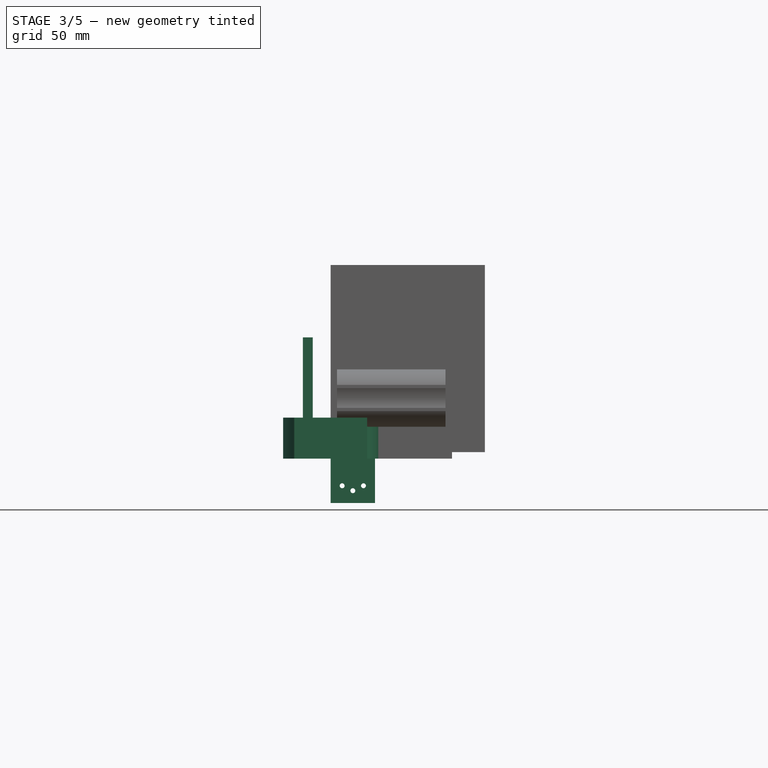
[diagram: stage 3 of 5 — front view after this stage's code; geometry added in this stage tinted green]
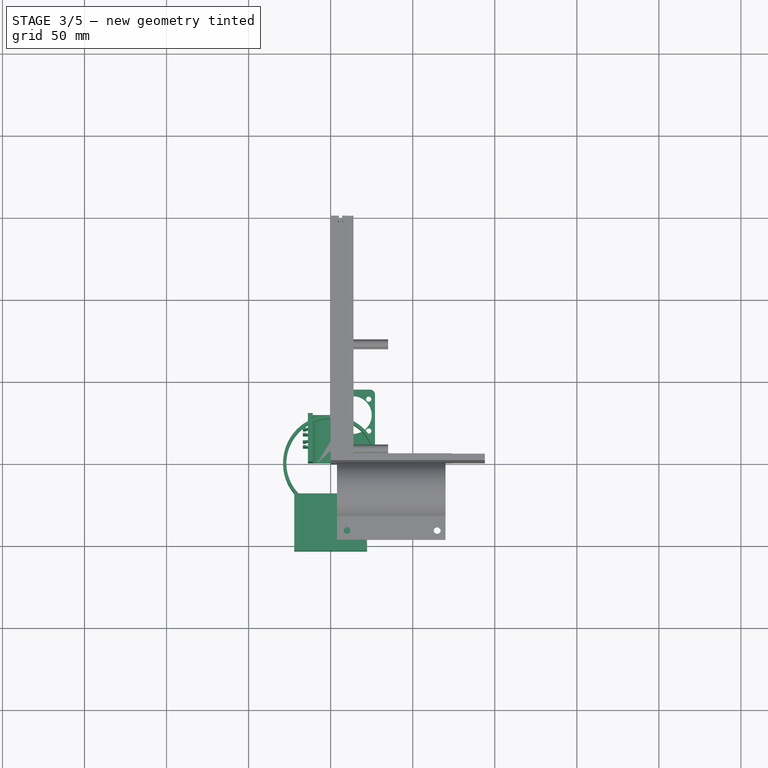
[diagram: stage 3 of 5 — top view after this stage's code; geometry added in this stage tinted green]
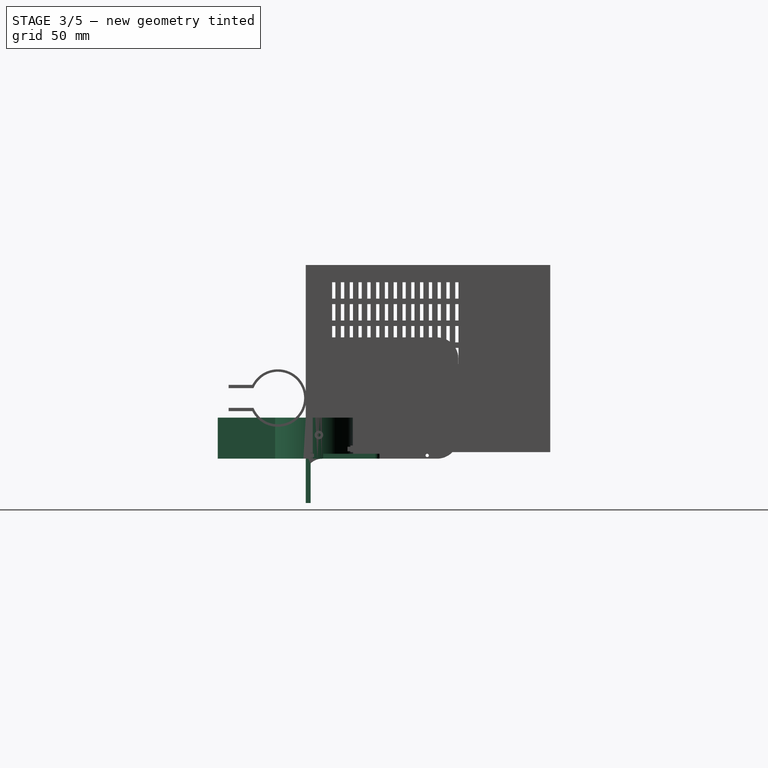
[diagram: stage 3 of 5 — right view after this stage's code; geometry added in this stage tinted green]
FEATURE [PartDesign::Body] Body003  label="HalfPipe_discarded"
  AllowCompound = false
  Group = -> [Sketch011,Pad008,Sketch012,Pocket006,Sketch013,Pocket007,Sketch014,Pocket008]
  Origin = -> Origin003
  Tip = -> Pocket008
FEATURE [Sketcher::SketchObject] Sketch015  label="CircleMain"
  ArcFitTolerance = 1e-06
  AttachmentSupport = -> [XY_Plane004]
  FullyConstrained = true
  MakeInternals = false
  MapMode = 5
  sketch-geometry (2):
    g0: ArcOfCircle CenterX=0 CenterY=0 CenterZ=0 NormalX=0 NormalY=0 NormalZ=1 AngleXU=0 Radius=29 StartAngle=5.58505 EndAngle=10.1229
    g1: LineSegment StartX=-22.2153 StartY=-18.6408 StartZ=0 EndX=22.2153 EndY=-18.6408 EndZ=0
  constraints (6):
    c: Radius(g0) = 29
    c: Angle(g0) = 4.53786
    c: Coincident(g0,g-1)
    c: Coincident(g1,g0)
    c: Coincident(g1,g0)
    c: Horizontal(g1)
FEATURE [Sketcher::SketchObject] Sketch016  label="ClearCircle"
  ArcFitTolerance = 1e-06
  AttachmentSupport = -> [XY_Plane004]
  FullyConstrained = true
  MakeInternals = false
  MapMode = 5
  sketch-geometry (1):
    g0: Circle CenterX=0 CenterY=0 CenterZ=0 NormalX=0 NormalY=0 NormalZ=1 AngleXU=0 Radius=27
  constraints (2):
    c: Diameter(g0) = 54
    c: Coincident(g0,g-1)
FEATURE [PartDesign::Pad] Pad015
  Direction = (0,0,1)
  Length = 25
  Length2 = 10
  Profile = -> Sketch015
  ReferenceAxis = -> Sketch015 [N_Axis]
  Refine = true
  Suppressed = false
  Type = 0
FEATURE [PartDesign::Pocket] Pocket017
  BaseFeature = -> Pad015
  Direction = (0,0,-1)
  Length = 25
  Length2 = 5
  Profile = -> Sketch016
  ReferenceAxis = -> Sketch016 [N_Axis]
  Refine = true
  Reversed = true
  Suppressed = false
  Type = 0
FEATURE [PartDesign::Body] Body006  label="ShaftHolder_discarded"
  AllowCompound = false
  Group = -> [Sketch038,Pad020,Sketch039,Pad021]
  Origin = -> Origin006
  Tip = -> Pad021
FEATURE [Sketcher::SketchObject] Sketch041
  ArcFitTolerance = 1e-06
  FullyConstrained = false
  MakeInternals = false
  MapMode = 5
  Placement = pos=(-23.1605,0,0) rot=(0.57735,-0.57735,-0.57735;2.0944rad)
  sketch-geometry (1):
    g0: Circle CenterX=48.14 CenterY=8.08569 CenterZ=0 NormalX=0 NormalY=0 NormalZ=1 AngleXU=0 Radius=2.5
  constraints (2):
    c: Diameter(g0) = 5
    c: DistanceX(g0) = 48.14
FEATURE [PartDesign::Pad] Pad022  label="RectPad"
  BaseFeature = -> Pocket017
  Direction = (0,0,1)
  Length = 25
  Length2 = 10
  Profile = -> Sketch030
  ReferenceAxis = -> Sketch030 [N_Axis]
  Refine = true
  Suppressed = false
  Type = 0
FEATURE [PartDesign::Body] Body004  label="DEC-Pipe-Holes_discarded"
  AllowCompound = false
  Group = -> [Sketch015,Sketch016,Pad015,Pocket017,Sketch030,Sketch031,Sketch032,Sketch041,Pad022,Pocket021,Pocket022,Pocket024,Sketch044,Pad025,Sketch066,Pocket030]
  Origin = -> Origin004
  Tip = -> Pocket030
FEATURE [Sketcher::SketchObject] Sketch088
  ArcFitTolerance = 1e-06
  AttachmentSupport = -> [XY_Plane010]
  FullyConstrained = true
  MakeInternals = false
  MapMode = 5
  sketch-geometry (13):
    g0: LineSegment StartX=0 StartY=42 StartZ=0 EndX=0 EndY=0 EndZ=0
    g1: LineSegment StartX=27 StartY=0 StartZ=0 EndX=27 EndY=42 EndZ=0
    g2: LineSegment StartX=24 StartY=45 StartZ=0 EndX=3 EndY=45 EndZ=0
    g3: ArcOfCircle CenterX=3 CenterY=42 CenterZ=0 NormalX=0 NormalY=0 NormalZ=1 AngleXU=0 Radius=3 StartAngle=1.5708 EndAngle=3.14159
    g4: GeomPoint [constr] X=0 Y=45 Z=0
    g5: LineSegment StartX=0 StartY=0 StartZ=0 EndX=27 EndY=0 EndZ=0
    g6: Circle CenterX=13.5 CenterY=29.5 CenterZ=0 NormalX=0 NormalY=0 NormalZ=1 AngleXU=0 Radius=11.5
    g7: ArcOfCircle CenterX=24 CenterY=42 CenterZ=0 NormalX=0 NormalY=0 NormalZ=1 AngleXU=0 Radius=3 StartAngle=-9e-16 EndAngle=1.5708
    g8: GeomPoint [constr] X=27 Y=45 Z=0
    g9: Circle CenterX=3.8 CenterY=39.2 CenterZ=0 NormalX=0 NormalY=0 NormalZ=1 AngleXU=0 Radius=1.6
    g10: Circle CenterX=23.2 CenterY=39.2 CenterZ=0 NormalX=0 NormalY=0 NormalZ=1 AngleXU=0 Radius=1.6
    g11: Circle CenterX=23.2 CenterY=19.8 CenterZ=0 NormalX=0 NormalY=0 NormalZ=1 AngleXU=0 Radius=1.6
    g12: Circle CenterX=3.8 CenterY=19.8 CenterZ=0 NormalX=0 NormalY=0 NormalZ=1 AngleXU=0 Radius=1.6
  constraints (35):
    c: Vertical(g0)
    c: Vertical(g1)
    c: Horizontal(g2)
    c: Distance(g4,g8) = 27
    c: Distance(g0,g4) = 45
    c: PointOnObject(g4,g0)
    c: PointOnObject(g4,g2)
    c: Tangent(g0,g3) = -1.5708
    c: Tangent(g2,g3) = -1.5708
    c: Horizontal(g5)
    c: Coincident(g5,g0)
    c: Coincident(g1,g5)
    c: DistanceY(g-1,g0) = 0
    c: DistanceX(g-1,g0) = 0
    c: Diameter(g6) = 23
    c: DistanceX(g0,g6) = 13.5
    c: DistanceY(g0,g6) = 29.5
    c: PointOnObject(g8,g1)
    c: PointOnObject(g8,g2)
    c: Tangent(g1,g7) = -1.5708
    c: Tangent(g2,g7) = -1.5708
    c: DistanceX(g0,g3) = 3
    c: DistanceX(g7,g1) = 3
    c: Diameter(g9) = 3.2
    c: DistanceY(g6,g9) = 9.7
    c: DistanceX(g9,g6) = 9.7
    c: Diameter(g10) = 3.2
    c: Diameter(g11) = 3.2
    c: Diameter(g12) = 3.2
    c: DistanceX(g12,g6) = 9.7
    c: DistanceX(g6,g11) = 9.7
    c: DistanceX(g6,g10) = 9.7
    c: DistanceY(g6,g10) = 9.7
    c: DistanceY(g11,g6) = 9.7
    c: DistanceY(g12,g6) = 9.7
FEATURE [Sketcher::SketchObject] Sketch089
  ArcFitTolerance = 1e-06
  AttachmentSupport = -> [XZ_Plane010]
  FullyConstrained = true
  MakeInternals = false
  MapMode = 5
  Placement = pos=(0,0,0) rot=(1,0,0;1.5708rad)
  sketch-geometry (7):
    g0: LineSegment StartX=0 StartY=0 StartZ=0 EndX=0 EndY=-27 EndZ=0
    g1: LineSegment StartX=0 StartY=-27 StartZ=0 EndX=27 EndY=-27 EndZ=0
    g2: LineSegment StartX=27 StartY=-27 StartZ=0 EndX=27 EndY=0 EndZ=0
    g3: LineSegment StartX=27 StartY=0 StartZ=0 EndX=0 EndY=0 EndZ=0
    g4: Circle CenterX=7 CenterY=-16.5 CenterZ=0 NormalX=0 NormalY=0 NormalZ=1 AngleXU=0 Radius=1.5
    g5: Circle CenterX=13.5 CenterY=-19.5 CenterZ=0 NormalX=0 NormalY=0 NormalZ=1 AngleXU=0 Radius=1.5
    g6: Circle CenterX=20 CenterY=-16.5 CenterZ=0 NormalX=0 NormalY=0 NormalZ=1 AngleXU=0 Radius=1.5
  constraints (20):
    c: Coincident(g0,g1)
    c: Coincident(g1,g2)
    c: Coincident(g2,g3)
    c: Coincident(g3,g0)
    c: Vertical(g0)
    c: Vertical(g2)
    c: Horizontal(g1)
    c: Horizontal(g3)
    c: Distance(g0,g2) = 27
    c: Distance(g1,g3) = 27
    c: Coincident(g0,g-1)
    c: Diameter(g4) = 3
    c: Diameter(g5) = 3
    c: Diameter(g6) = 3
    c: DistanceX(g0,g4) = 7
    c: DistanceY(g4,g0) = 16.5
    c: DistanceY(g4,g6) = 0
    c: DistanceX(g4,g6) = 13
    c: DistanceX(g4,g5) = 6.5
    c: DistanceY(g5,g4) = 3
FEATURE [PartDesign::Pad] Pad036
  Direction = (0,-1,2e-16)
  Length = 3
  Length2 = 10
  Placement = pos=(0,0,0) rot=(1,0,0;1.5708rad)
  Profile = -> Sketch089
  ReferenceAxis = -> Sketch089 [N_Axis]
  Refine = true
  Reversed = true
  Suppressed = false
  Type = 0
FEATURE [PartDesign::Pad] Pad037
  BaseFeature = -> Pad036
  Direction = (0,0,1)
  Length = 3
  Length2 = 10
  Placement = pos=(0,0,0) rot=(1,0,0;1.5708rad)
  Profile = -> Sketch088
  ReferenceAxis = -> Sketch088 [N_Axis]
  Refine = true
  Suppressed = false
  Type = 0
FEATURE [Sketcher::SketchObject] Sketch090
  ArcFitTolerance = 1e-06
  AttachmentSupport = -> [YZ_Plane010]
  FullyConstrained = false
  MakeInternals = false
  MapMode = 5
  Placement = pos=(0,0,0) rot=(0.57735,0.57735,0.57735;2.0944rad)
  sketch-geometry (3):
    g0: ArcOfCircle CenterX=10 CenterY=-10 CenterZ=0 NormalX=0 NormalY=0 NormalZ=1 AngleXU=0 Radius=10 StartAngle=1.5708 EndAngle=3.14159
    g1: LineSegment StartX=0 StartY=-10 StartZ=0 EndX=0 EndY=0 EndZ=0
    g2: LineSegment StartX=10 StartY=0 StartZ=0 EndX=0 EndY=0 EndZ=0
  constraints (6):
    c: Tangent(g1,g0) = 1.5708
    c: Coincident(g1,g-1)
    c: Vertical(g1)
    c: Coincident(g2,g0)
    c: Coincident(g2,g1)
    c: Horizontal(g2)
FEATURE [PartDesign::Pad] Pad038
  BaseFeature = -> Pad037
  Direction = (1,0,0)
  Length = 27
  Length2 = 10
  Placement = pos=(0,0,0) rot=(1,0,0;1.5708rad)
  Profile = -> Sketch090
  ReferenceAxis = -> Sketch090 [N_Axis]
  Refine = true
  Suppressed = false
  Type = 0
FEATURE [Sketcher::SketchObject] Sketch092
  ArcFitTolerance = 1e-06
  AttachmentSupport = -> [Pad038]
  FullyConstrained = true
  MakeInternals = false
  MapMode = 5
  Placement = pos=(0,0,0) rot=(0.707107,0,-0.707107;3.14159rad)
  sketch-geometry (4):
    g0: LineSegment StartX=0 StartY=0 StartZ=0 EndX=-3 EndY=0 EndZ=0
    g1: LineSegment StartX=-3 StartY=0 StartZ=0 EndX=-3 EndY=-29.5 EndZ=0
    g2: LineSegment StartX=-3 StartY=-29.5 StartZ=0 EndX=0 EndY=-29.5 EndZ=0
    g3: LineSegment StartX=0 StartY=-29.5 StartZ=0 EndX=0 EndY=0 EndZ=0
  constraints (11):
    c: Coincident(g0,g1)
    c: Coincident(g1,g2)
    c: Coincident(g2,g3)
    c: Coincident(g3,g0)
    c: Horizontal(g0)
    c: Horizontal(g2)
    c: Vertical(g1)
    c: Vertical(g3)
    c: Distance(g1,g3) = 3
    c: Distance(g0,g2) = 29.5
    c: Coincident(g0,g-1)
FEATURE [PartDesign::Pad] Pad039
  BaseFeature = -> Pad038
  Direction = (-1,0,-2e-16)
  Length = 10.9
  Length2 = 10
  Placement = pos=(0,0,0) rot=(1,0,0;1.5708rad)
  Profile = -> Sketch092
  ReferenceAxis = -> Sketch092 [N_Axis]
  Refine = true
  Suppressed = false
  Type = 0
FEATURE [Sketcher::SketchObject] Sketch093
  ArcFitTolerance = 1e-06
  AttachmentSupport = -> [Pad039]
  FullyConstrained = true
  MakeInternals = false
  MapMode = 5
  Placement = pos=(0,0,3) rot=(0,0,1;3.14159rad)
  sketch-geometry (4):
    g0: LineSegment StartX=10.9 StartY=0 StartZ=0 EndX=10.9 EndY=-29.5 EndZ=0
    g1: LineSegment StartX=10.9 StartY=-29.5 StartZ=0 EndX=13.9 EndY=-29.5 EndZ=0
    g2: LineSegment StartX=13.9 StartY=-29.5 StartZ=0 EndX=13.9 EndY=0 EndZ=0
    g3: LineSegment StartX=13.9 StartY=0 StartZ=0 EndX=10.9 EndY=0 EndZ=0
  constraints (12):
    c: Coincident(g0,g1)
    c: Coincident(g1,g2)
    c: Coincident(g2,g3)
    c: Coincident(g3,g0)
    c: Vertical(g0)
    c: Vertical(g2)
    c: Horizontal(g1)
    c: Horizontal(g3)
    c: Distance(g0,g2) = 3
    c: Distance(g1,g3) = 29.5
    c: PointOnObject(g0,g-1)
    c: DistanceX(g-1,g0) = 10.9
FEATURE [PartDesign::Pad] Pad040
  BaseFeature = -> Pad039
  Direction = (0,0,1)
  Length = 70.9
  Length2 = 3
  Placement = pos=(0,0,0) rot=(1,0,0;1.5708rad)
  Profile = -> Sketch093
  ReferenceAxis = -> Sketch093 [N_Axis]
  Refine = true
  Suppressed = false
  Type = 4
FEATURE [Sketcher::SketchObject] Sketch094
  ArcFitTolerance = 1e-06
  AttachmentSupport = -> [Pad040]
  FullyConstrained = true
  MakeInternals = false
  MapMode = 5
  Placement = pos=(0,0,73.9) rot=(0,0,1;3.14159rad)
  sketch-geometry (8):
    g0: LineSegment StartX=13.9 StartY=-9 StartZ=0 EndX=13.9 EndY=-13 EndZ=0
    g1: LineSegment StartX=13.9 StartY=-13 StartZ=0 EndX=16.9 EndY=-13 EndZ=0
    g2: LineSegment StartX=16.9 StartY=-13 StartZ=0 EndX=16.9 EndY=-9 EndZ=0
    g3: LineSegment StartX=16.9 StartY=-9 StartZ=0 EndX=13.9 EndY=-9 EndZ=0
    g4: LineSegment StartX=13.9 StartY=-16.5 StartZ=0 EndX=13.9 EndY=-20.5 EndZ=0
    g5: LineSegment StartX=13.9 StartY=-20.5 StartZ=0 EndX=16.9 EndY=-20.5 EndZ=0
    g6: LineSegment StartX=16.9 StartY=-20.5 StartZ=0 EndX=16.9 EndY=-16.5 EndZ=0
    g7: LineSegment StartX=16.9 StartY=-16.5 StartZ=0 EndX=13.9 EndY=-16.5 EndZ=0
  constraints (24):
    c: Coincident(g0,g1)
    c: Coincident(g1,g2)
    c: Coincident(g2,g3)
    c: Coincident(g3,g0)
    c: Vertical(g0)
    c: Vertical(g2)
    c: Horizontal(g1)
    c: Horizontal(g3)
    c: Distance(g0,g2) = 3
    c: Distance(g1,g3) = 4
    c: DistanceX(g-1,g0) = 13.9
    c: DistanceY(g0,g-1) = 9
    c: Coincident(g4,g5)
    c: Coincident(g5,g6)
    c: Coincident(g6,g7)
    c: Coincident(g7,g4)
    c: Vertical(g4)
    c: Vertical(g6)
    c: Horizontal(g5)
    c: Horizontal(g7)
    c: Distance(g4,g6) = 3
    c: Distance(g5,g7) = 4
    c: DistanceX(g4,g0) = 0
    c: DistanceY(g4,g0) = 11.5
FEATURE [PartDesign::Pad] Pad041
  BaseFeature = -> Pad040
  Direction = (0,0,1)
  Length = 73.9
  Length2 = 10
  Placement = pos=(0,0,0) rot=(1,0,0;1.5708rad)
  Profile = -> Sketch094
  ReferenceAxis = -> Sketch094 [N_Axis]
  Refine = true
  Reversed = true
  Suppressed = false
  Type = 0
FEATURE [Sketcher::SketchObject] Sketch095
  ArcFitTolerance = 1e-06
  AttachmentSupport = -> [Pad041]
  FullyConstrained = true
  MakeInternals = false
  MapMode = 5
  Placement = pos=(0,0,73.9) rot=(0,0,1;3.14159rad)
  sketch-geometry (16):
    g0: LineSegment StartX=13.9 StartY=-9.5 StartZ=0 EndX=13.9 EndY=-12.5 EndZ=0
    g1: LineSegment StartX=13.9 StartY=-12.5 StartZ=0 EndX=14.9 EndY=-12.5 EndZ=0
    g2: LineSegment StartX=14.9 StartY=-12.5 StartZ=0 EndX=14.9 EndY=-9.5 EndZ=0
    g3: LineSegment StartX=14.9 StartY=-9.5 StartZ=0 EndX=13.9 EndY=-9.5 EndZ=0
    g4: LineSegment StartX=14.9 StartY=-10 StartZ=0 EndX=14.9 EndY=-12 EndZ=0
    g5: LineSegment StartX=14.9 StartY=-12 StartZ=0 EndX=16.9 EndY=-12 EndZ=0
    g6: LineSegment StartX=16.9 StartY=-12 StartZ=0 EndX=16.9 EndY=-10 EndZ=0
    g7: LineSegment StartX=16.9 StartY=-10 StartZ=0 EndX=14.9 EndY=-10 EndZ=0
    g8: LineSegment StartX=13.9 StartY=-17 StartZ=0 EndX=13.9 EndY=-20 EndZ=0
    g9: LineSegment StartX=13.9 StartY=-20 StartZ=0 EndX=14.9 EndY=-20 EndZ=0
    g10: LineSegment StartX=14.9 StartY=-20 StartZ=0 EndX=14.9 EndY=-17 EndZ=0
    g11: LineSegment StartX=14.9 StartY=-17 StartZ=0 EndX=13.9 EndY=-17 EndZ=0
    g12: LineSegment StartX=14.9 StartY=-17.5 StartZ=0 EndX=14.9 EndY=-19.5 EndZ=0
    g13: LineSegment StartX=14.9 StartY=-19.5 StartZ=0 EndX=16.9 EndY=-19.5 EndZ=0
    g14: LineSegment StartX=16.9 StartY=-19.5 StartZ=0 EndX=16.9 EndY=-17.5 EndZ=0
    g15: LineSegment StartX=16.9 StartY=-17.5 StartZ=0 EndX=14.9 EndY=-17.5 EndZ=0
  constraints (48):
    c: Coincident(g0,g1)
    c: Coincident(g1,g2)
    c: Coincident(g2,g3)
    c: Coincident(g3,g0)
    c: Vertical(g0)
    c: Vertical(g2)
    c: Horizontal(g1)
    c: Horizontal(g3)
    c: Distance(g0,g2) = 1
    c: Distance(g1,g3) = 3
    c: DistanceX(g-1,g0) = 13.9
    c: DistanceY(g0,g-1) = 9.5
    c: Coincident(g4,g5)
    c: Coincident(g5,g6)
    c: Coincident(g6,g7)
    c: Coincident(g7,g4)
    c: Vertical(g4)
    c: Vertical(g6)
    c: Horizontal(g5)
    c: Horizontal(g7)
    c: Distance(g4,g6) = 2
    c: Distance(g5,g7) = 2
    c: PointOnObject(g4,g2)
    c: DistanceY(g4,g2) = 0.5
    c: Coincident(g8,g9)
    c: Coincident(g9,g10)
    c: Coincident(g10,g11)
    c: Coincident(g11,g8)
    c: Vertical(g8)
    c: Vertical(g10)
    c: Horizontal(g9)
    c: Horizontal(g11)
    c: Distance(g8,g10) = 1
    c: Distance(g9,g11) = 3
    c: DistanceX(g0,g8) = 0
    c: DistanceY(g8,g-1) = 20
    c: Coincident(g12,g13)
    c: Coincident(g13,g14)
    c: Coincident(g14,g15)
    c: Coincident(g15,g12)
    c: Vertical(g12)
    c: Vertical(g14)
    c: Horizontal(g13)
    c: Horizontal(g15)
    c: Distance(g12,g14) = 2
    c: Distance(g13,g15) = 2
    c: PointOnObject(g12,g10)
    c: DistanceY(g12,g10) = 0.5
FEATURE [PartDesign::Pocket] Pocket048
  BaseFeature = -> Pad041
  Direction = (0,0,-1)
  Length = 74
  Length2 = 5
  Placement = pos=(0,0,0) rot=(1,0,0;1.5708rad)
  Profile = -> Sketch095
  ReferenceAxis = -> Sketch095 [N_Axis]
  Refine = true
  Suppressed = false
  Type = 0
FEATURE [Sketcher::SketchObject] Sketch096
  ArcFitTolerance = 1e-06
  AttachmentSupport = -> [Pocket048]
  FullyConstrained = true
  MakeInternals = false
  MapMode = 5
  Placement = pos=(-13.9,0,0) rot=(0.707107,0,-0.707107;3.14159rad)
  sketch-geometry (1):
    g0: Circle CenterX=-10 CenterY=-14.7 CenterZ=0 NormalX=0 NormalY=0 NormalZ=1 AngleXU=0 Radius=1
  constraints (3):
    c: Diameter(g0) = 2
    c: DistanceY(g0,g-1) = 14.7
    c: DistanceX(g0,g-1) = 10
FEATURE [PartDesign::Pocket] Pocket049
  BaseFeature = -> Pocket048
  Direction = (1,0,2e-16)
  Length = 3
  Length2 = 5
  Placement = pos=(0,0,0) rot=(1,0,0;1.5708rad)
  Profile = -> Sketch096
  ReferenceAxis = -> Sketch096 [N_Axis]
  Refine = true
  Suppressed = false
  Type = 0
FEATURE [Sketcher::SketchObject] Sketch097
  ArcFitTolerance = 1e-06
  AttachmentSupport = -> [Pocket049]
  FullyConstrained = false
  MakeInternals = false
  MapMode = 5
  Placement = pos=(0,-1.5e-15,0) rot=(1,0,0;1.5708rad)
  sketch-geometry (4):
    g0: GeomPoint X=-5.45 Y=8.45 Z=0
    g1: ArcOfCircle CenterX=-5.45 CenterY=8.45 CenterZ=0 NormalX=0 NormalY=0 NormalZ=1 AngleXU=0 Radius=6.11147 StartAngle=3.48987 EndAngle=4.33767
    g2: LineSegment StartX=-11.1946 StartY=6.36431 StartZ=0 EndX=-11.552 EndY=1.66334 EndZ=0
    g3: LineSegment StartX=-7.68688 StartY=2.76261 StartZ=0 EndX=-11.552 EndY=1.66334 EndZ=0
  constraints (6):
    c: DistanceX(g0,g-1) = 5.45
    c: DistanceY(g-1,g0) = 8.45
    c: Coincident(g1,g0)
    c: Coincident(g2,g1)
    c: Coincident(g3,g1)
    c: Coincident(g3,g2)
FEATURE [PartDesign::Pad] Pad042
  BaseFeature = -> Pocket049
  Direction = (0,-1,2e-16)
  Length = 29.5
  Length2 = 10
  Placement = pos=(0,0,0) rot=(1,0,0;1.5708rad)
  Profile = -> Sketch097
  ReferenceAxis = -> Sketch097 [N_Axis]
  Refine = true
  Reversed = true
  Suppressed = false
  Type = 0
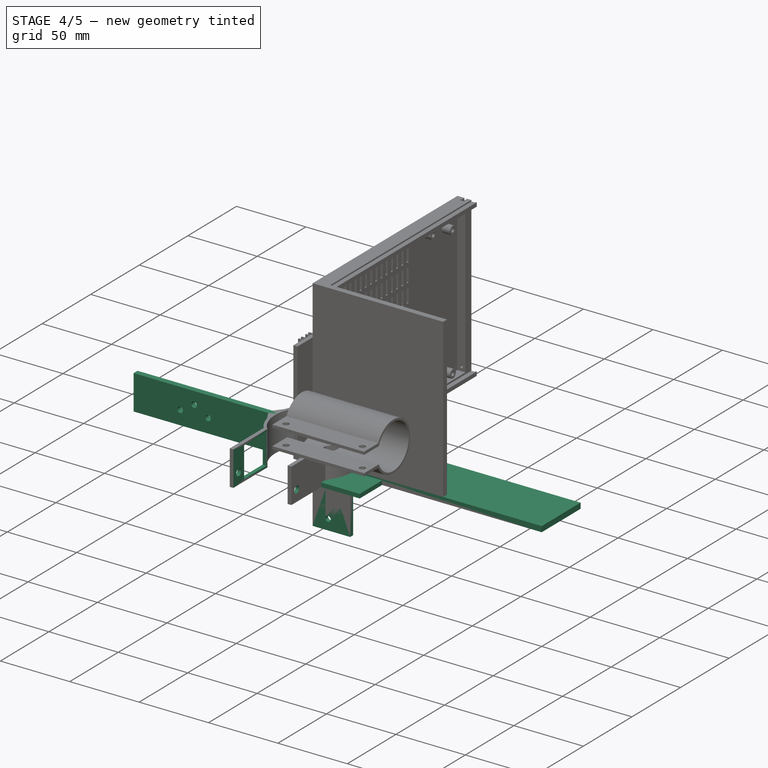
[diagram: stage 4 of 5 — iso view after this stage's code; geometry added in this stage tinted green]
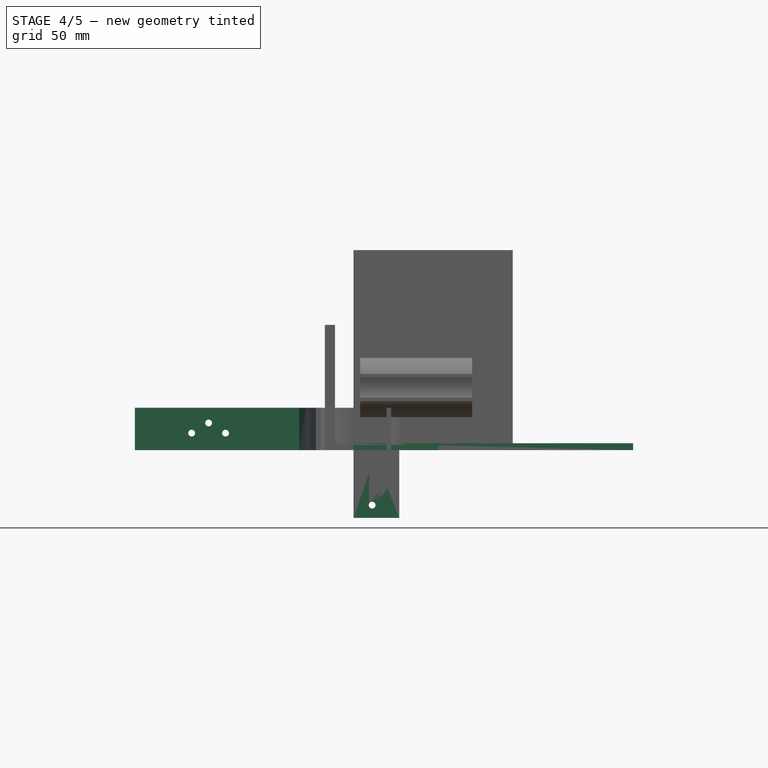
[diagram: stage 4 of 5 — front view after this stage's code; geometry added in this stage tinted green]
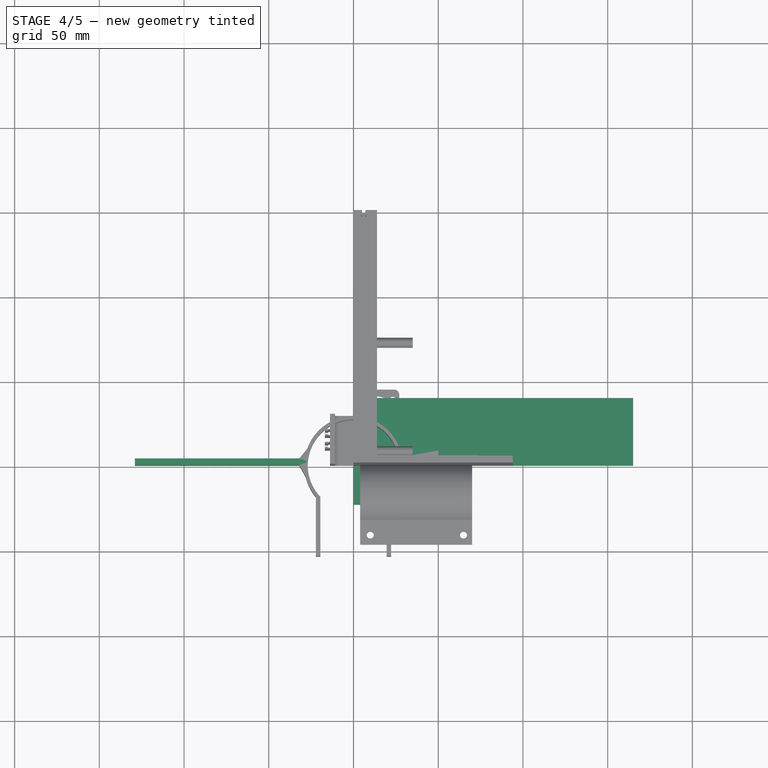
[diagram: stage 4 of 5 — top view after this stage's code; geometry added in this stage tinted green]
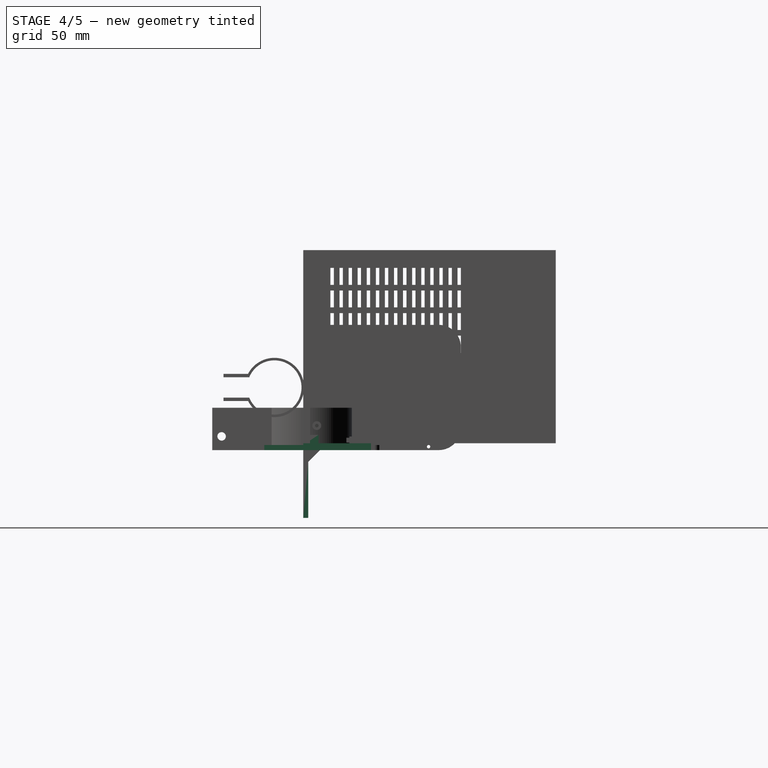
[diagram: stage 4 of 5 — right view after this stage's code; geometry added in this stage tinted green]
FEATURE [Sketcher::SketchObject] Sketch001
  ArcFitTolerance = 1e-06
  AttachmentSupport = -> [XY_Plane001]
  FullyConstrained = false
  MakeInternals = false
  MapMode = 5
  sketch-geometry (14):
    g0: LineSegment StartX=-160 StartY=0 StartZ=0 EndX=-160 EndY=20 EndZ=0
    g1: LineSegment StartX=-160 StartY=20 StartZ=0 EndX=0 EndY=20 EndZ=0
    g2: LineSegment StartX=0 StartY=20 StartZ=0 EndX=0 EndY=0 EndZ=0
    g3: LineSegment StartX=0 StartY=0 StartZ=0 EndX=-160 EndY=0 EndZ=0
    g4: Circle CenterX=-134 CenterY=6 CenterZ=0 NormalX=0 NormalY=0 NormalZ=1 AngleXU=0 Radius=5
    g5: Circle CenterX=-150 CenterY=9 CenterZ=0 NormalX=0 NormalY=0 NormalZ=1 AngleXU=0 Radius=5
    g6: Circle CenterX=-118 CenterY=9 CenterZ=0 NormalX=0 NormalY=0 NormalZ=1 AngleXU=0 Radius=5
    g7: LineSegment StartX=-70 StartY=40 StartZ=0 EndX=-70 EndY=20 EndZ=0
    g8: LineSegment StartX=-40 StartY=20 StartZ=0 EndX=-40 EndY=40 EndZ=0
    g9: LineSegment StartX=-40 StartY=40 StartZ=0 EndX=-70 EndY=40 EndZ=0
    g10: Circle CenterX=-65 CenterY=23 CenterZ=0 NormalX=0 NormalY=0 NormalZ=1 AngleXU=0 Radius=2
    g11: Circle CenterX=-55 CenterY=15 CenterZ=0 NormalX=0 NormalY=0 NormalZ=1 AngleXU=0 Radius=2
    g12: Circle CenterX=-45 CenterY=23 CenterZ=0 NormalX=0 NormalY=0 NormalZ=1 AngleXU=0 Radius=2
    g13: LineSegment StartX=-70 StartY=20 StartZ=0 EndX=-40 EndY=20 EndZ=0
  constraints (40):
    c: Coincident(g0,g1)
    c: Coincident(g1,g2)
    c: Coincident(g2,g3)
    c: Coincident(g3,g0)
    c: Vertical(g0)
    c: Vertical(g2)
    c: Horizontal(g1)
    c: Horizontal(g3)
    c: DistanceX(g1,g1) = 160
    c: Diameter(g4) = 10
    c: Diameter(g5) = 10
    c: Diameter(g6) = 10
    c: DistanceX(g5,g4) = 16
    c: DistanceX(g4,g6) = 16
    c: DistanceX(g0,g5) = 10
    c: DistanceY(g2,g2) = 20
    c: DistanceY(g0,g-1) = 0
    c: DistanceX(g2) = 0
    c: Coincident(g8,g9)
    c: Coincident(g9,g7)
    c: Vertical(g7)
    c: Vertical(g8)
    c: Horizontal(g9)
    c: Distance(g7,g8) = 30
    c: Distance(g7,g9) = 20
    c: DistanceX(g8,g1) = 40
    c: DistanceY(g1,g8) = 0
    c: Diameter(g10) = 4
    c: Diameter(g11) = 4
    c: Diameter(g12) = 4
    c: DistanceX(g10,g11) = 10
    c: DistanceX(g11,g12) = 10
    c: DistanceY(g10,g7) = 17
    c: DistanceY(g11,g10) = 8
    c: DistanceY(g1,g7) = 0
    c: Coincident(g13,g7)
    c: Coincident(g13,g8)
    c: DistanceY(g5,g0) = 11
    c: DistanceY(g6,g0) = 11
    c: DistanceY(g4,g0) = 14
FEATURE [Sketcher::SketchObject] Sketch004
  ArcFitTolerance = 1e-06
  AttachmentSupport = -> [XY_Plane002]
  FullyConstrained = true
  MakeInternals = false
  MapMode = 5
  sketch-geometry (13):
    g0: LineSegment StartX=0 StartY=42 StartZ=0 EndX=0 EndY=0 EndZ=0
    g1: LineSegment StartX=27 StartY=0 StartZ=0 EndX=27 EndY=42 EndZ=0
    g2: LineSegment StartX=24 StartY=45 StartZ=0 EndX=3 EndY=45 EndZ=0
    g3: ArcOfCircle CenterX=3 CenterY=42 CenterZ=0 NormalX=0 NormalY=0 NormalZ=1 AngleXU=0 Radius=3 StartAngle=1.5708 EndAngle=3.14159
    g4: GeomPoint [constr] X=0 Y=45 Z=0
    g5: LineSegment StartX=0 StartY=0 StartZ=0 EndX=27 EndY=0 EndZ=0
    g6: Circle CenterX=13.5 CenterY=29.5 CenterZ=0 NormalX=0 NormalY=0 NormalZ=1 AngleXU=0 Radius=11.5
    g7: ArcOfCircle CenterX=24 CenterY=42 CenterZ=0 NormalX=0 NormalY=0 NormalZ=1 AngleXU=0 Radius=3 StartAngle=-9e-16 EndAngle=1.5708
    g8: GeomPoint [constr] X=27 Y=45 Z=0
    g9: Circle CenterX=3.8 CenterY=39.2 CenterZ=0 NormalX=0 NormalY=0 NormalZ=1 AngleXU=0 Radius=1.6
    g10: Circle CenterX=23.2 CenterY=39.2 CenterZ=0 NormalX=0 NormalY=0 NormalZ=1 AngleXU=0 Radius=1.6
    g11: Circle CenterX=23.2 CenterY=19.8 CenterZ=0 NormalX=0 NormalY=0 NormalZ=1 AngleXU=0 Radius=1.6
    g12: Circle CenterX=3.8 CenterY=19.8 CenterZ=0 NormalX=0 NormalY=0 NormalZ=1 AngleXU=0 Radius=1.6
  constraints (35):
    c: Vertical(g0)
    c: Vertical(g1)
    c: Horizontal(g2)
    c: Distance(g4,g8) = 27
    c: Distance(g0,g4) = 45
    c: PointOnObject(g4,g0)
    c: PointOnObject(g4,g2)
    c: Tangent(g0,g3) = -1.5708
    c: Tangent(g2,g3) = -1.5708
    c: Horizontal(g5)
    c: Coincident(g5,g0)
    c: Coincident(g1,g5)
    c: DistanceY(g-1,g0) = 0
    c: DistanceX(g-1,g0) = 0
    c: Diameter(g6) = 23
    c: DistanceX(g0,g6) = 13.5
    c: DistanceY(g0,g6) = 29.5
    c: PointOnObject(g8,g1)
    c: PointOnObject(g8,g2)
    c: Tangent(g1,g7) = -1.5708
    c: Tangent(g2,g7) = -1.5708
    c: DistanceX(g0,g3) = 3
    c: DistanceX(g7,g1) = 3
    c: Diameter(g9) = 3.2
    c: DistanceY(g6,g9) = 9.7
    c: DistanceX(g9,g6) = 9.7
    c: Diameter(g10) = 3.2
    c: Diameter(g11) = 3.2
    c: Diameter(g12) = 3.2
    c: DistanceX(g12,g6) = 9.7
    c: DistanceX(g6,g11) = 9.7
    c: DistanceX(g6,g10) = 9.7
    c: DistanceY(g6,g10) = 9.7
    c: DistanceY(g11,g6) = 9.7
    c: DistanceY(g12,g6) = 9.7
FEATURE [Sketcher::SketchObject] Sketch005
  ArcFitTolerance = 1e-06
  AttachmentSupport = -> [XZ_Plane002]
  FullyConstrained = true
  MakeInternals = false
  MapMode = 5
  Placement = pos=(0,0,0) rot=(1,0,0;1.5708rad)
  sketch-geometry (7):
    g0: LineSegment StartX=0 StartY=0 StartZ=0 EndX=0 EndY=-40 EndZ=0
    g1: LineSegment StartX=0 StartY=-40 StartZ=0 EndX=27 EndY=-40 EndZ=0
    g2: LineSegment StartX=27 StartY=-40 StartZ=0 EndX=27 EndY=0 EndZ=0
    g3: LineSegment StartX=27 StartY=0 StartZ=0 EndX=0 EndY=0 EndZ=0
    g4: Circle CenterX=11 CenterY=-12.5 CenterZ=0 NormalX=0 NormalY=0 NormalZ=1 AngleXU=0 Radius=2
    g5: Circle CenterX=18 CenterY=-22.5 CenterZ=0 NormalX=0 NormalY=0 NormalZ=1 AngleXU=0 Radius=2
    g6: Circle CenterX=11 CenterY=-32.5 CenterZ=0 NormalX=0 NormalY=0 NormalZ=1 AngleXU=0 Radius=2
  constraints (20):
    c: Coincident(g0,g1)
    c: Coincident(g1,g2)
    c: Coincident(g2,g3)
    c: Coincident(g3,g0)
    c: Vertical(g0)
    c: Vertical(g2)
    c: Horizontal(g1)
    c: Horizontal(g3)
    c: Distance(g0,g2) = 27
    c: Distance(g1,g3) = 40
    c: Coincident(g0,g-1)
    c: Diameter(g4) = 4
    c: Diameter(g5) = 4
    c: Diameter(g6) = 4
    c: DistanceX(g0,g5) = 18
    c: DistanceY(g5,g0) = 22.5
    c: DistanceY(g5,g4) = 10
    c: DistanceX(g0,g4) = 11
    c: DistanceX(g4,g6) = 0
    c: DistanceY(g6,g5) = 10
FEATURE [PartDesign::Pad] Pad003
  Direction = (0,-1,2e-16)
  Length = 3
  Length2 = 10
  Placement = pos=(0,0,0) rot=(1,0,0;1.5708rad)
  Profile = -> Sketch005
  ReferenceAxis = -> Sketch005 [N_Axis]
  Refine = true
  Reversed = true
  Suppressed = false
  Type = 0
FEATURE [PartDesign::Pad] Pad004
  BaseFeature = -> Pad003
  Direction = (0,0,1)
  Length = 3
  Length2 = 10
  Placement = pos=(0,0,0) rot=(1,0,0;1.5708rad)
  Profile = -> Sketch004
  ReferenceAxis = -> Sketch004 [N_Axis]
  Refine = true
  Suppressed = false
  Type = 0
FEATURE [Sketcher::SketchObject] Sketch030  label="Rectangle"
  ArcFitTolerance = 1e-06
  AttachmentSupport = -> [XY_Plane004]
  FullyConstrained = true
  MakeInternals = false
  MapMode = 5
  sketch-geometry (4):
    g0: LineSegment StartX=-22.2153 StartY=-18.6408 StartZ=0 EndX=-22.2153 EndY=-53.6408 EndZ=0
    g1: LineSegment StartX=-22.2153 StartY=-53.6408 StartZ=0 EndX=22.2153 EndY=-53.6408 EndZ=0
    g2: LineSegment StartX=22.2153 StartY=-53.6408 StartZ=0 EndX=22.2153 EndY=-18.6408 EndZ=0
    g3: LineSegment StartX=22.2153 StartY=-18.6408 StartZ=0 EndX=-22.2153 EndY=-18.6408 EndZ=0
  constraints (12):
    c: Coincident(g0,g1)
    c: Coincident(g1,g2)
    c: Coincident(g2,g3)
    c: Coincident(g3,g0)
    c: Vertical(g0)
    c: Vertical(g2)
    c: Horizontal(g1)
    c: Horizontal(g3)
    c: Distance(g1,g3) = 35
    c: DistanceY(g0,g-1) = 18.6408
    c: Distance(g-1,g0) = 29
    c: Distance(g-1,g2) = 29
FEATURE [Sketcher::SketchObject] Sketch031  label="RectClear"
  ArcFitTolerance = 1e-06
  AttachmentSupport = -> [XY_Plane004]
  FullyConstrained = true
  MakeInternals = false
  MapMode = 5
  sketch-geometry (4):
    g0: LineSegment StartX=-19.5326 StartY=-18.6408 StartZ=0 EndX=-19.5326 EndY=-53.6408 EndZ=0
    g1: LineSegment StartX=-19.5326 StartY=-53.6408 StartZ=0 EndX=19.5326 EndY=-53.6408 EndZ=0
    g2: LineSegment StartX=19.5326 StartY=-53.6408 StartZ=0 EndX=19.5326 EndY=-18.6408 EndZ=0
    g3: LineSegment StartX=19.5326 StartY=-18.6408 StartZ=0 EndX=-19.5326 EndY=-18.6408 EndZ=0
  constraints (12):
    c: Coincident(g0,g1)
    c: Coincident(g1,g2)
    c: Coincident(g2,g3)
    c: Coincident(g3,g0)
    c: Vertical(g0)
    c: Vertical(g2)
    c: Horizontal(g1)
    c: Horizontal(g3)
    c: Distance(g1,g3) = 35
    c: DistanceY(g0,g-1) = 18.6408
    c: Distance(g0,g-1) = 27
    c: Distance(g-1,g2) = 27
FEATURE [Sketcher::SketchObject] Sketch032
  ArcFitTolerance = 1e-06
  FullyConstrained = true
  MakeInternals = false
  MapMode = 5
  Placement = pos=(0,0,0) rot=(0.57735,0.57735,0.57735;2.0944rad)
  sketch-geometry (4):
    g0: LineSegment StartX=-42.6408 StartY=23.5 StartZ=0 EndX=-42.6408 EndY=1.5 EndZ=0
    g1: LineSegment StartX=-42.6408 StartY=1.5 StartZ=0 EndX=-19.6408 EndY=1.5 EndZ=0
    g2: LineSegment StartX=-19.6408 StartY=1.5 StartZ=0 EndX=-19.6408 EndY=23.5 EndZ=0
    g3: LineSegment StartX=-19.6408 StartY=23.5 StartZ=0 EndX=-42.6408 EndY=23.5 EndZ=0
  constraints (12):
    c: Coincident(g0,g1)
    c: Coincident(g1,g2)
    c: Coincident(g2,g3)
    c: Coincident(g3,g0)
    c: Vertical(g0)
    c: Vertical(g2)
    c: Horizontal(g1)
    c: Horizontal(g3)
    c: Distance(g0,g2) = 23
    c: Distance(g1,g3) = 22
    c: DistanceY(g-1,g1) = 1.5
    c: DistanceX(g1,g-1) = 19.6408
FEATURE [Sketcher::SketchObject] Sketch034
  ArcFitTolerance = 1e-06
  AttachmentSupport = -> [XY_Plane005]
  FullyConstrained = false
  MakeInternals = false
  MapMode = 5
  sketch-geometry (4):
    g0: LineSegment StartX=0 StartY=32 StartZ=0 EndX=0 EndY=0 EndZ=0
    g1: LineSegment StartX=0 StartY=0 StartZ=0 EndX=10 EndY=0 EndZ=0
    g2: LineSegment StartX=10 StartY=0 StartZ=0 EndX=10 EndY=32 EndZ=0
    g3: LineSegment StartX=10 StartY=32 StartZ=0 EndX=0 EndY=32 EndZ=0
  constraints (11):
    c: Coincident(g0,g1)
    c: Coincident(g1,g2)
    c: Coincident(g2,g3)
    c: Coincident(g3,g0)
    c: Vertical(g0)
    c: Vertical(g2)
    c: Horizontal(g1)
    c: Horizontal(g3)
    c: Distance(g0,g2) = 10
    c: Distance(g1,g3) = 32
    c: DistanceY(g-1,g0) = 0
FEATURE [PartDesign::Pad] Pad018
  Direction = (0,0,1)
  Length = 2
  Length2 = 10
  Profile = -> Sketch034
  ReferenceAxis = -> Sketch034 [N_Axis]
  Refine = true
  Suppressed = false
  Type = 0
FEATURE [PartDesign::Body] Body005  label="DEC-L-Grab_discarded"
  AllowCompound = false
  Group = -> [Sketch034,Pad018,Sketch035,Pad019,Sketch036,Pocket020]
  Origin = -> Origin005
  Placement = pos=(-22.8412,2.44729,-1.44458) rot=(0,0,1;0rad)
  Tip = -> Pocket020
FEATURE [Sketcher::SketchObject] Sketch038  label="Shaft"
  ArcFitTolerance = 1e-06
  AttachmentSupport = -> [XY_Plane006]
  FullyConstrained = true
  MakeInternals = false
  MapMode = 5
  sketch-geometry (4):
    g0: LineSegment StartX=0 StartY=0 StartZ=0 EndX=50 EndY=0 EndZ=0
    g1: LineSegment StartX=50 StartY=0 StartZ=0 EndX=50 EndY=9 EndZ=0
    g2: LineSegment StartX=50 StartY=9 StartZ=0 EndX=0 EndY=9 EndZ=0
    g3: LineSegment StartX=0 StartY=9 StartZ=0 EndX=0 EndY=0 EndZ=0
  constraints (11):
    c: Coincident(g0,g1)
    c: Coincident(g1,g2)
    c: Coincident(g2,g3)
    c: Coincident(g3,g0)
    c: Horizontal(g0)
    c: Horizontal(g2)
    c: Vertical(g1)
    c: Vertical(g3)
    c: Distance(g1,g3) = 50
    c: Distance(g0,g2) = 9
    c: Coincident(g0,g-1)
FEATURE [PartDesign::Pad] Pad020  label="ShaftPad"
  Direction = (0,0,1)
  Length = 9
  Length2 = 10
  Profile = -> Sketch038
  ReferenceAxis = -> Sketch038 [N_Axis]
  Refine = true
  Suppressed = false
  Type = 0
FEATURE [Sketcher::SketchObject] Sketch039
  ArcFitTolerance = 1e-06
  AttachmentSupport = -> [XY_Plane006]
  FullyConstrained = true
  MakeInternals = false
  MapMode = 5
  sketch-geometry (4):
    g0: LineSegment StartX=0 StartY=0 StartZ=0 EndX=0 EndY=-23 EndZ=0
    g1: LineSegment StartX=0 StartY=-23 StartZ=0 EndX=50 EndY=-23 EndZ=0
    g2: LineSegment StartX=50 StartY=-23 StartZ=0 EndX=50 EndY=0 EndZ=0
    g3: LineSegment StartX=50 StartY=0 StartZ=0 EndX=0 EndY=0 EndZ=0
  constraints (11):
    c: Coincident(g0,g1)
    c: Coincident(g1,g2)
    c: Coincident(g2,g3)
    c: Coincident(g3,g0)
    c: Vertical(g0)
    c: Vertical(g2)
    c: Horizontal(g1)
    c: Horizontal(g3)
    c: Distance(g0,g2) = 50
    c: Distance(g1,g3) = 23
    c: Coincident(g0,g-1)
FEATURE [PartDesign::Pad] Pad021
  BaseFeature = -> Pad020
  Direction = (0,0,1)
  Length = 3
  Length2 = 10
  Profile = -> Sketch039
  ReferenceAxis = -> Sketch039 [N_Axis]
  Refine = true
  Suppressed = false
  Type = 0
FEATURE [PartDesign::Pocket] Pocket021  label="RectPocket"
  BaseFeature = -> Pad022
  Direction = (0,0,-1)
  Length = 36
  Length2 = 5
  Profile = -> Sketch031
  ReferenceAxis = -> Sketch031 [N_Axis]
  Refine = true
  Reversed = true
  Suppressed = false
  Type = 0
FEATURE [PartDesign::Pocket] Pocket022  label="RectOnWall"
  BaseFeature = -> Pocket021
  Direction = (-1,-1e-16,1e-16)
  Length = 36
  Length2 = 5
  Profile = -> Sketch032
  ReferenceAxis = -> Sketch032 [N_Axis]
  Refine = true
  Suppressed = false
  Type = 0
FEATURE [PartDesign::Pocket] Pocket024
  BaseFeature = -> Pocket022
  Direction = (1,-1e-16,1e-16)
  Length = 5
  Length2 = 5
  Profile = -> Sketch041
  ReferenceAxis = -> Sketch041 [N_Axis]
  Refine = true
  Suppressed = false
  Type = 1
FEATURE [Sketcher::SketchObject] Sketch042
  ArcFitTolerance = 1e-06
  AttachmentSupport = -> [XY_Plane007]
  FullyConstrained = true
  MakeInternals = false
  MapMode = 5
  sketch-geometry (4):
    g0: LineSegment StartX=0 StartY=40 StartZ=0 EndX=0 EndY=0 EndZ=0
    g1: LineSegment StartX=0 StartY=0 StartZ=0 EndX=165 EndY=0 EndZ=0
    g2: LineSegment StartX=165 StartY=0 StartZ=0 EndX=165 EndY=40 EndZ=0
    g3: LineSegment StartX=165 StartY=40 StartZ=0 EndX=0 EndY=40 EndZ=0
  constraints (12):
    c: Coincident(g0,g1)
    c: Coincident(g1,g2)
    c: Coincident(g2,g3)
    c: Coincident(g3,g0)
    c: Vertical(g0)
    c: Vertical(g2)
    c: Horizontal(g1)
    c: Horizontal(g3)
    c: Distance(g0,g2) = 165
    c: Distance(g1,g3) = 40
    c: DistanceY(g-1,g0) = 0
    c: DistanceX(g-1,g0) = 0
FEATURE [PartDesign::Pad] Pad023
  Direction = (0,0,1)
  Length = 4
  Length2 = 10
  Profile = -> Sketch042
  ReferenceAxis = -> Sketch042 [N_Axis]
  Refine = true
  Suppressed = false
  Type = 0
FEATURE [PartDesign::Body] Body007  label="Stick_discarded"
  AllowCompound = false
  Group = -> [Sketch042,Pad023]
  Origin = -> Origin007
  Tip = -> Pad023
FEATURE [Sketcher::SketchObject] Sketch043
  ArcFitTolerance = 1e-06
  AttachmentSupport = -> [YZ_Plane002]
  FullyConstrained = true
  MakeInternals = false
  MapMode = 5
  Placement = pos=(0,0,0) rot=(0.57735,0.57735,0.57735;2.0944rad)
  sketch-geometry (3):
    g0: LineSegment StartX=0 StartY=0 StartZ=0 EndX=0 EndY=-10 EndZ=0
    g1: LineSegment StartX=0 StartY=-10 StartZ=0 EndX=10 EndY=0 EndZ=0
    g2: LineSegment StartX=10 StartY=0 StartZ=0 EndX=0 EndY=0 EndZ=0
  constraints (8):
    c: Coincident(g-1,g0)
    c: PointOnObject(g0,g-2)
    c: Coincident(g0,g1)
    c: Coincident(g1,g2)
    c: Coincident(g2,g0)
    c: Horizontal(g2)
    c: DistanceX(g0,g1) = 10
    c: DistanceY(g0,g0) = 10
FEATURE [PartDesign::Pad] Pad024
  BaseFeature = -> Pad004
  Direction = (1,0,0)
  Length = 27
  Length2 = 10
  Placement = pos=(0,0,0) rot=(1,0,0;1.5708rad)
  Profile = -> Sketch043
  ReferenceAxis = -> Sketch043 [N_Axis]
  Refine = true
  Suppressed = false
  Type = 0
FEATURE [PartDesign::Body] Body002  label="L-Grabber_discarded"
  AllowCompound = false
  Group = -> [Sketch005,Sketch004,Pad003,Pad004,Sketch043,Pad024]
  Origin = -> Origin002
  Placement = pos=(-70,7,0) rot=(-0.58,-0.58,0.58;2.09387rad)
  Tip = -> Pad024
FEATURE [Sketcher::SketchObject] Sketch044
  ArcFitTolerance = 1e-06
  AttachmentSupport = -> [XY_Plane004]
  FullyConstrained = false
  MakeInternals = false
  MapMode = 5
  sketch-geometry (8):
    g0: LineSegment StartX=-129 StartY=4 StartZ=0 EndX=-129 EndY=0 EndZ=0
    g1: LineSegment StartX=-129 StartY=0 StartZ=0 EndX=-29 EndY=0 EndZ=0
    g2: LineSegment StartX=-29 StartY=0 StartZ=0 EndX=-29 EndY=4 EndZ=0
    g3: LineSegment StartX=-29 StartY=4 StartZ=0 EndX=-129 EndY=4 EndZ=0
    g4: LineSegment StartX=-32 StartY=4 StartZ=0 EndX=-27.0172 EndY=10.09 EndZ=0
    g5: LineSegment StartX=-27.0172 StartY=10.09 StartZ=0 EndX=-27.6809 EndY=-7.67685 EndZ=0
    g6: LineSegment StartX=-27.6809 StartY=-7.67685 StartZ=0 EndX=-32 EndY=0 EndZ=0
    g7: LineSegment StartX=-32 StartY=0 StartZ=0 EndX=-32 EndY=4 EndZ=0
  constraints (20):
    c: Coincident(g0,g1)
    c: Coincident(g1,g2)
    c: Coincident(g2,g3)
    c: Coincident(g3,g0)
    c: Vertical(g0)
    c: Vertical(g2)
    c: Horizontal(g1)
    c: Horizontal(g3)
    c: Distance(g0,g2) = 100
    c: Distance(g1,g3) = 4
    c: DistanceY(g-1,g1) = 0
    c: DistanceX(g1,g-1) = 29
    c: PointOnObject(g4,g3)
    c: Coincident(g4,g5)
    c: Coincident(g5,g6)
    c: PointOnObject(g6,g1)
    c: Coincident(g6,g7)
    c: Coincident(g7,g4)
    c: DistanceX(g6,g-1) = 32
    c: DistanceX(g4,g-1) = 32
FEATURE [PartDesign::Pad] Pad025
  BaseFeature = -> Pocket024
  Direction = (0,0,1)
  Length = 25
  Length2 = 10
  Profile = -> Sketch044
  ReferenceAxis = -> Sketch044 [N_Axis]
  Refine = true
  Suppressed = false
  Type = 0
FEATURE [Sketcher::SketchObject] Sketch066
  ArcFitTolerance = 1e-06
  AttachmentSupport = -> [Pad025]
  FullyConstrained = true
  MakeInternals = false
  MapMode = 5
  Placement = pos=(0,0,0) rot=(1,0,0;1.5708rad)
  sketch-geometry (3):
    g0: Circle CenterX=-95.5 CenterY=10 CenterZ=0 NormalX=0 NormalY=0 NormalZ=1 AngleXU=0 Radius=2
    g1: Circle CenterX=-85.5 CenterY=16 CenterZ=0 NormalX=0 NormalY=0 NormalZ=1 AngleXU=0 Radius=2
    g2: Circle CenterX=-75.5 CenterY=10 CenterZ=0 NormalX=0 NormalY=0 NormalZ=1 AngleXU=0 Radius=2
  constraints (9):
    c: Diameter(g0) = 4
    c: DistanceX(g0,g-1) = 95.5
    c: DistanceY(g-1,g0) = 10
    c: Diameter(g1) = 4
    c: DistanceY(g-1,g1) = 16
    c: DistanceX(g0,g1) = 10
    c: Diameter(g2) = 4
    c: DistanceX(g1,g2) = 10
    c: DistanceY(g0,g2) = 0
FEATURE [PartDesign::Pocket] Pocket030
  BaseFeature = -> Pad025
  Direction = (0,1,-2e-16)
  Length = 4
  Length2 = 5
  Profile = -> Sketch066
  ReferenceAxis = -> Sketch066 [N_Axis]
  Refine = true
  Suppressed = false
  Type = 0
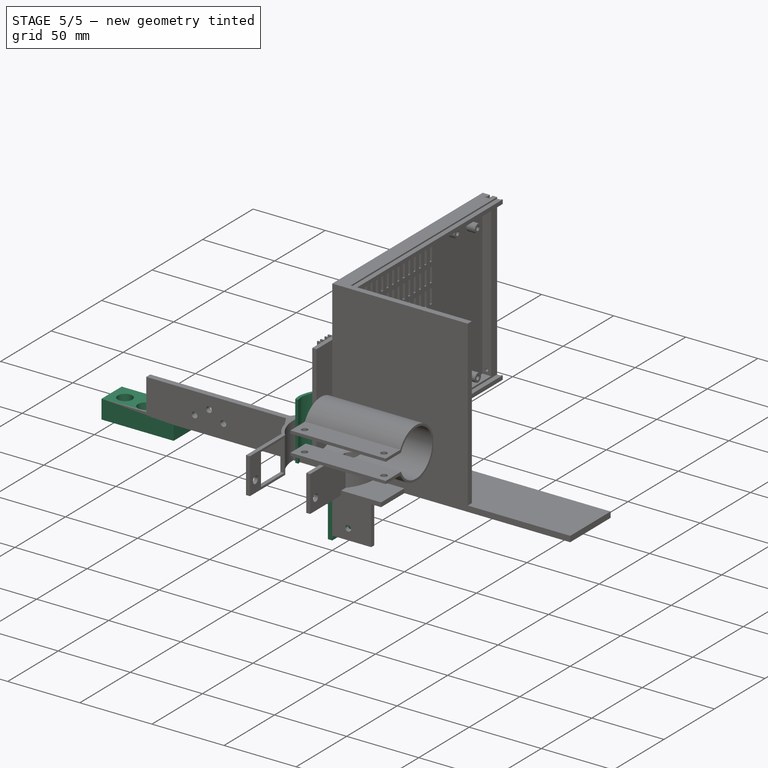
[diagram: stage 5 of 5 — iso view after this stage's code; geometry added in this stage tinted green]
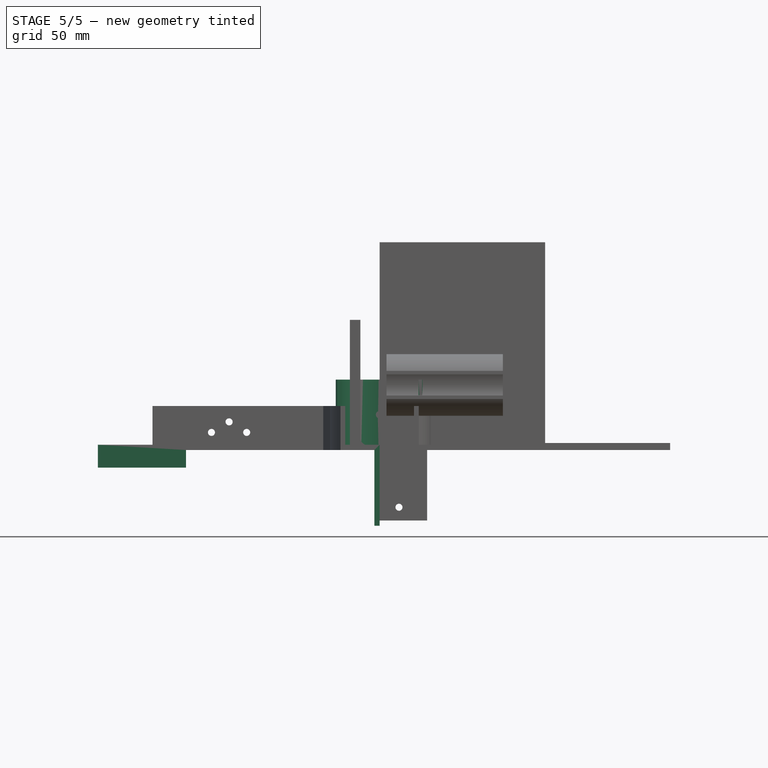
[diagram: stage 5 of 5 — front view after this stage's code; geometry added in this stage tinted green]
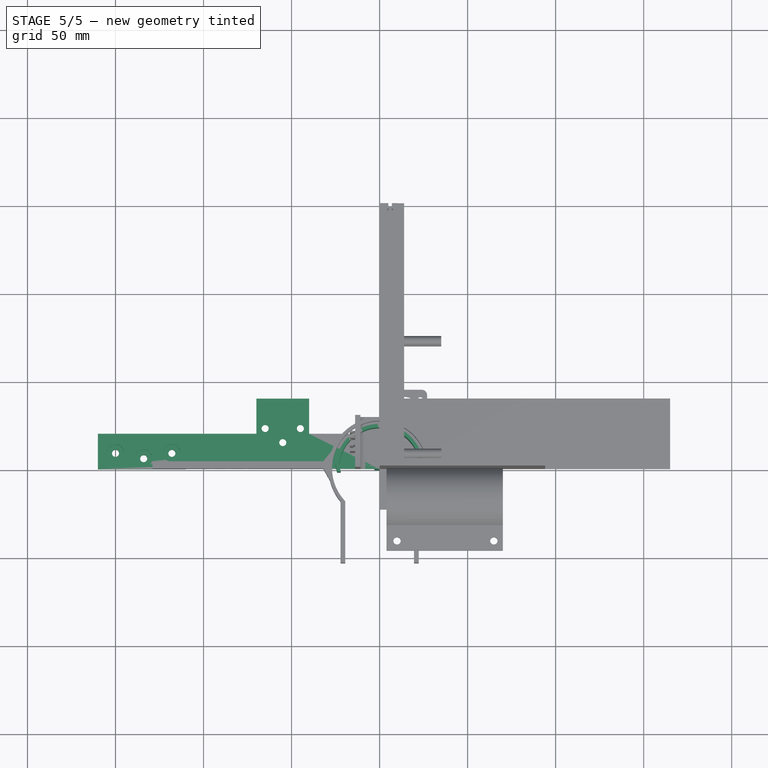
[diagram: stage 5 of 5 — top view after this stage's code; geometry added in this stage tinted green]
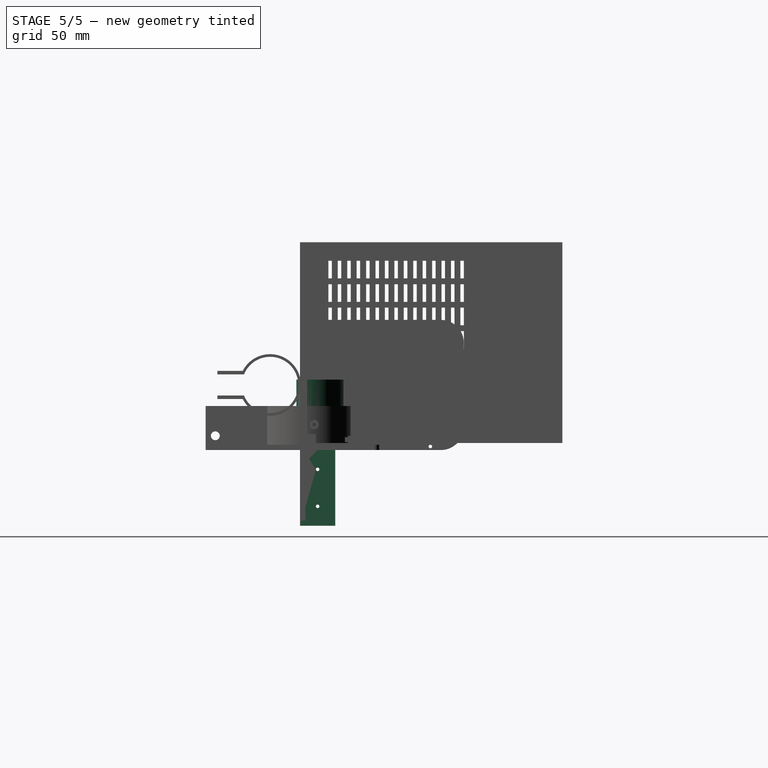
[diagram: stage 5 of 5 — right view after this stage's code; geometry added in this stage tinted green]
FEATURE [Sketcher::SketchObject] Sketch006  label="StepMotorBack"
  ArcFitTolerance = 1e-06
  AttachmentSupport = -> [YZ_Plane001]
  FullyConstrained = true
  MakeInternals = false
  MapMode = 5
  Placement = pos=(0,0,0) rot=(0.57735,0.57735,0.57735;2.0944rad)
  sketch-geometry (6):
    g0: LineSegment StartX=0 StartY=0 StartZ=0 EndX=0 EndY=-43 EndZ=0
    g1: LineSegment StartX=0 StartY=-43 StartZ=0 EndX=20 EndY=-43 EndZ=0
    g2: LineSegment StartX=20 StartY=-43 StartZ=0 EndX=20 EndY=0 EndZ=0
    g3: LineSegment StartX=20 StartY=0 StartZ=0 EndX=0 EndY=0 EndZ=0
    g4: Circle CenterX=10 CenterY=-11 CenterZ=0 NormalX=0 NormalY=0 NormalZ=1 AngleXU=0 Radius=1
    g5: Circle CenterX=10 CenterY=-32 CenterZ=0 NormalX=0 NormalY=0 NormalZ=1 AngleXU=0 Radius=1
  constraints (18):
    c: Coincident(g0,g1)
    c: Coincident(g1,g2)
    c: Coincident(g2,g3)
    c: Coincident(g3,g0)
    c: Vertical(g0)
    c: Vertical(g2)
    c: Horizontal(g1)
    c: Horizontal(g3)
    c: Distance(g0,g2) = 20
    c: Distance(g1,g3) = 43
    c: PointOnObject(g0,g-2)
    c: DistanceY(g-1,g0) = 0
    c: Diameter(g4) = 2
    c: Diameter(g5) = 2
    c: DistanceY(g5,g4) = 21
    c: DistanceX(g0,g4) = 10
    c: DistanceX(g0,g5) = 10
    c: DistanceY(g4,g0) = 11
FEATURE [PartDesign::Pad] Pad
  Direction = (0,0,1)
  Length = 3
  Length2 = 10
  Profile = -> Sketch001
  ReferenceAxis = -> Sketch001 [N_Axis]
  Refine = true
  Suppressed = false
  Type = 0
FEATURE [PartDesign::Pad] Pad005
  BaseFeature = -> Pad
  Direction = (1,0,0)
  Length = 3
  Length2 = 10
  Profile = -> Sketch006
  ReferenceAxis = -> Sketch006 [N_Axis]
  Refine = true
  Reversed = true
  Suppressed = false
  Type = 0
FEATURE [Sketcher::SketchObject] Sketch
  ArcFitTolerance = 1e-06
  AttachmentSupport = -> [XY_Plane001]
  FullyConstrained = true
  MakeInternals = false
  MapMode = 5
  sketch-geometry (7):
    g0: LineSegment StartX=-110 StartY=20 StartZ=0 EndX=-160 EndY=20 EndZ=0
    g1: LineSegment StartX=-160 StartY=20 StartZ=0 EndX=-160 EndY=0 EndZ=0
    g2: LineSegment StartX=-160 StartY=0 StartZ=0 EndX=-110 EndY=0 EndZ=0
    g3: LineSegment StartX=-110 StartY=0 StartZ=0 EndX=-110 EndY=20 EndZ=0
    g4: Circle CenterX=-150 CenterY=9 CenterZ=0 NormalX=0 NormalY=0 NormalZ=1 AngleXU=0 Radius=2
    g5: Circle CenterX=-134 CenterY=6 CenterZ=0 NormalX=0 NormalY=0 NormalZ=1 AngleXU=0 Radius=2
    g6: Circle CenterX=-118 CenterY=9 CenterZ=0 NormalX=0 NormalY=0 NormalZ=1 AngleXU=0 Radius=2
  constraints (21):
    c: Coincident(g0,g1)
    c: Coincident(g1,g2)
    c: Coincident(g2,g3)
    c: Coincident(g3,g0)
    c: Horizontal(g0)
    c: Horizontal(g2)
    c: Vertical(g1)
    c: Vertical(g3)
    c: Distance(g1,g3) = 50
    c: Distance(g0,g2) = 20
    c: DistanceX(g1,g-1) = 160
    c: DistanceY(g-1,g2) = 0
    c: Diameter(g4) = 4
    c: DistanceY(g4,g0) = 11
    c: Diameter(g5) = 4
    c: Diameter(g6) = 4
    c: DistanceX(g0,g4) = 10
    c: DistanceX(g4,g5) = 16
    c: DistanceX(g5,g6) = 16
    c: DistanceY(g5,g0) = 14
    c: DistanceY(g6,g0) = 11
FEATURE [PartDesign::Pad] Pad006
  BaseFeature = -> Pad005
  Direction = (0,0,1)
  Length = 10
  Length2 = 10
  Profile = -> Sketch
  ReferenceAxis = -> Sketch [N_Axis]
  Refine = true
  Reversed = true
  Suppressed = false
  Type = 0
FEATURE [PartDesign::Pocket] Pocket
  BaseFeature = -> Pad006
  Direction = (0,0,-1)
  Length = 6
  Length2 = 5
  Profile = -> Pad006 [Edge10]
  Refine = true
  Suppressed = false
  Type = 0
FEATURE [PartDesign::Pocket] Pocket001
  BaseFeature = -> Pocket
  Direction = (0,0,-1)
  Length = 6
  Length2 = 5
  Profile = -> Pocket [Edge11]
  Refine = true
  Suppressed = false
  Type = 0
FEATURE [PartDesign::Pocket] Pocket002
  BaseFeature = -> Pocket001
  Direction = (0,0,-1)
  Length = 6
  Length2 = 5
  Profile = -> Pocket001 [Edge9]
  Refine = true
  Suppressed = false
  Type = 0
FEATURE [PartDesign::Body] Body001  label="Holder_discarded"
  AllowCompound = false
  Group = -> [Sketch001,Sketch006,Pad,Pad005,Sketch,Pad006,Pocket,Pocket001,Pocket002]
  Origin = -> Origin001
  Tip = -> Pocket002
FEATURE [Sketcher::SketchObject] Sketch011
  ArcFitTolerance = 1e-06
  AttachmentSupport = -> [XY_Plane003]
  FullyConstrained = false
  MakeInternals = false
  MapMode = 5
  sketch-geometry (4):
    g0: ArcOfCircle CenterX=0 CenterY=0 CenterZ=0 NormalX=0 NormalY=0 NormalZ=1 AngleXU=0 Radius=25 StartAngle=0.0872665 EndAngle=3.05433
    g1: ArcOfCircle CenterX=-1.20194e-08 CenterY=4.35779 CenterZ=0 NormalX=0 NormalY=0 NormalZ=1 AngleXU=0 Radius=25 StartAngle=6.02139 EndAngle=6.19592
    g2: ArcOfCircle CenterX=-1.20194e-08 CenterY=4.35779 CenterZ=0 NormalX=0 NormalY=0 NormalZ=1 AngleXU=0 Radius=25 StartAngle=3.22886 EndAngle=3.40339
    g3: LineSegment StartX=-24.1481 StartY=-2.11269 StartZ=0 EndX=24.1481 EndY=-2.11269 EndZ=0
  constraints (12):
    c: Radius(g0) = 25
    c: Angle(g0) = 2.96706
    c: DistanceX(g0,g-1) = 0
    c: DistanceY(g-1,g0) = 0
    c: Radius(g1) = 25
    c: Coincident(g1,g0)
    c: Angle(g2) = 0.174533
    c: Coincident(g2,g1)
    c: Coincident(g2,g0)
    c: Coincident(g3,g2)
    c: Coincident(g3,g1)
    c: Horizontal(g3)
FEATURE [PartDesign::Pad] Pad008
  Direction = (0,0,1)
  Length = 40
  Length2 = 10
  Profile = -> Sketch011
  ReferenceAxis = -> Sketch011 [N_Axis]
  Refine = true
  Suppressed = false
  Type = 0
FEATURE [Sketcher::SketchObject] Sketch012
  ArcFitTolerance = 1e-06
  AttachmentSupport = -> [XY_Plane003]
  FullyConstrained = true
  MakeInternals = false
  MapMode = 5
  sketch-geometry (2):
    g0: ArcOfCircle CenterX=0 CenterY=0 CenterZ=0 NormalX=0 NormalY=0 NormalZ=1 AngleXU=0 Radius=23 StartAngle=0.0887498 EndAngle=3.05284
    g1: LineSegment StartX=-22.9095 StartY=2.03857 StartZ=0 EndX=22.9095 EndY=2.03857 EndZ=0
  constraints (6):
    c: Radius(g0) = 23
    c: Angle(g0) = 2.96409
    c: Coincident(g0,g-1)
    c: Coincident(g1,g0)
    c: Coincident(g1,g0)
    c: Horizontal(g1)
FEATURE [PartDesign::Pocket] Pocket006
  BaseFeature = -> Pad008
  Direction = (0,0,-1)
  Length = 40
  Length2 = 5
  Profile = -> Sketch012
  ReferenceAxis = -> Sketch012 [N_Axis]
  Refine = true
  Reversed = true
  Suppressed = false
  Type = 0
FEATURE [Sketcher::SketchObject] Sketch013
  ArcFitTolerance = 1e-06
  AttachmentSupport = -> [XY_Plane003]
  FullyConstrained = false
  MakeInternals = false
  MapMode = 5
  sketch-geometry (2):
    g0: ArcOfCircle CenterX=3.93204e-08 CenterY=4.35779 CenterZ=0 NormalX=0 NormalY=0 NormalZ=1 AngleXU=0 Radius=23 StartAngle=3.22886 EndAngle=6.19592
    g1: LineSegment StartX=-22.9125 StartY=2.35321 StartZ=0 EndX=22.9125 EndY=2.35321 EndZ=0
  constraints (5):
    c: Radius(g0) = 23
    c: Angle(g0) = 2.96706
    c: Coincident(g1,g0)
    c: Coincident(g1,g0)
    c: Horizontal(g1)
FEATURE [PartDesign::Pocket] Pocket007
  BaseFeature = -> Pocket006
  Direction = (0,0,-1)
  Length = 40
  Length2 = 5
  Profile = -> Sketch013
  ReferenceAxis = -> Sketch013 [N_Axis]
  Refine = true
  Reversed = true
  Suppressed = false
  Type = 0
FEATURE [Sketcher::SketchObject] Sketch014
  ArcFitTolerance = 1e-06
  AttachmentSupport = -> [XZ_Plane003]
  FullyConstrained = false
  MakeInternals = false
  MapMode = 5
  Placement = pos=(0,0,0) rot=(1,0,0;1.5708rad)
  sketch-geometry (1):
    g0: Circle CenterX=0 CenterY=20.0632 CenterZ=0 NormalX=0 NormalY=0 NormalZ=1 AngleXU=0 Radius=2.1
  constraints (2):
    c: Diameter(g0) = 4.2
    c: PointOnObject(g0,g-2)
FEATURE [PartDesign::Pocket] Pocket008
  BaseFeature = -> Pocket007
  Direction = (0,1,-2e-16)
  Length = 5
  Length2 = 5
  Profile = -> Sketch014 [Edge1]
  ReferenceAxis = -> Sketch014 [N_Axis]
  Refine = true
  Suppressed = false
  Type = 1
FEATURE [Sketcher::SketchObject] Sketch035
  ArcFitTolerance = 1e-06
  AttachmentSupport = -> [Pad018]
  FullyConstrained = true
  MakeInternals = false
  MapMode = 5
  Placement = pos=(0,0,2) rot=(0,0,1;0rad)
  sketch-geometry (4):
    g0: LineSegment StartX=0 StartY=0 StartZ=0 EndX=2 EndY=0 EndZ=0
    g1: LineSegment StartX=2 StartY=0 StartZ=0 EndX=2 EndY=32 EndZ=0
    g2: LineSegment StartX=2 StartY=32 StartZ=0 EndX=0 EndY=32 EndZ=0
    g3: LineSegment StartX=0 StartY=32 StartZ=0 EndX=0 EndY=0 EndZ=0
  constraints (11):
    c: Coincident(g0,g1)
    c: Coincident(g1,g2)
    c: Coincident(g2,g3)
    c: Coincident(g3,g0)
    c: Horizontal(g0)
    c: Horizontal(g2)
    c: Vertical(g1)
    c: Vertical(g3)
    c: Distance(g1,g3) = 2
    c: Distance(g0,g2) = 32
    c: Coincident(g0,g-1)
FEATURE [PartDesign::Pad] Pad019
  BaseFeature = -> Pad018
  Direction = (0,0,1)
  Length = 20
  Length2 = 10
  Profile = -> Sketch035
  ReferenceAxis = -> Sketch035 [N_Axis]
  Refine = true
  Suppressed = false
  Type = 0
FEATURE [Sketcher::SketchObject] Sketch036
  ArcFitTolerance = 1e-06
  AttachmentSupport = -> [Pad019]
  FullyConstrained = false
  MakeInternals = false
  MapMode = 5
  Placement = pos=(0,0,2) rot=(0,0,1;0rad)
  sketch-geometry (4):
    g0: LineSegment StartX=10 StartY=13.9836 StartZ=0 EndX=10 EndY=16.0836 EndZ=0
    g1: LineSegment StartX=10 StartY=16.0836 StartZ=0 EndX=7 EndY=16.0836 EndZ=0
    g2: LineSegment StartX=7 StartY=16.0836 StartZ=0 EndX=7 EndY=13.9836 EndZ=0
    g3: LineSegment StartX=7 StartY=13.9836 StartZ=0 EndX=10 EndY=13.9836 EndZ=0
  constraints (11):
    c: Coincident(g0,g1)
    c: Coincident(g1,g2)
    c: Coincident(g2,g3)
    c: Coincident(g3,g0)
    c: Vertical(g0)
    c: Vertical(g2)
    c: Horizontal(g1)
    c: Horizontal(g3)
    c: Distance(g0,g2) = 3
    c: Distance(g1,g3) = 2.1
    c: DistanceX(g2) = 7
FEATURE [PartDesign::Pocket] Pocket020
  BaseFeature = -> Pad019
  Direction = (0,0,-1)
  Length = 2
  Length2 = 5
  Profile = -> Sketch036
  ReferenceAxis = -> Sketch036 [N_Axis]
  Refine = true
  Suppressed = false
  Type = 0
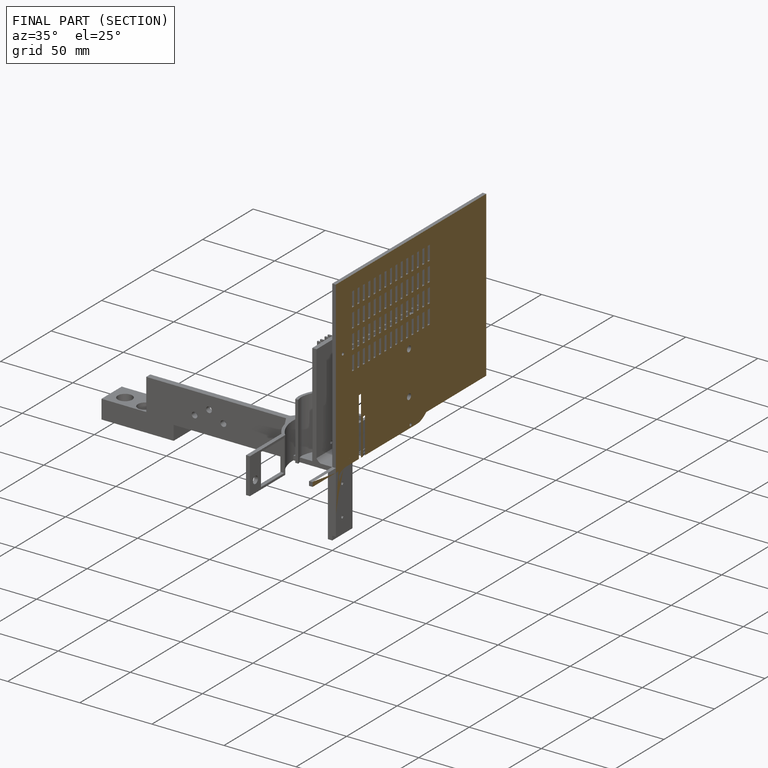
[diagram: finished part — half-section view (interior)]
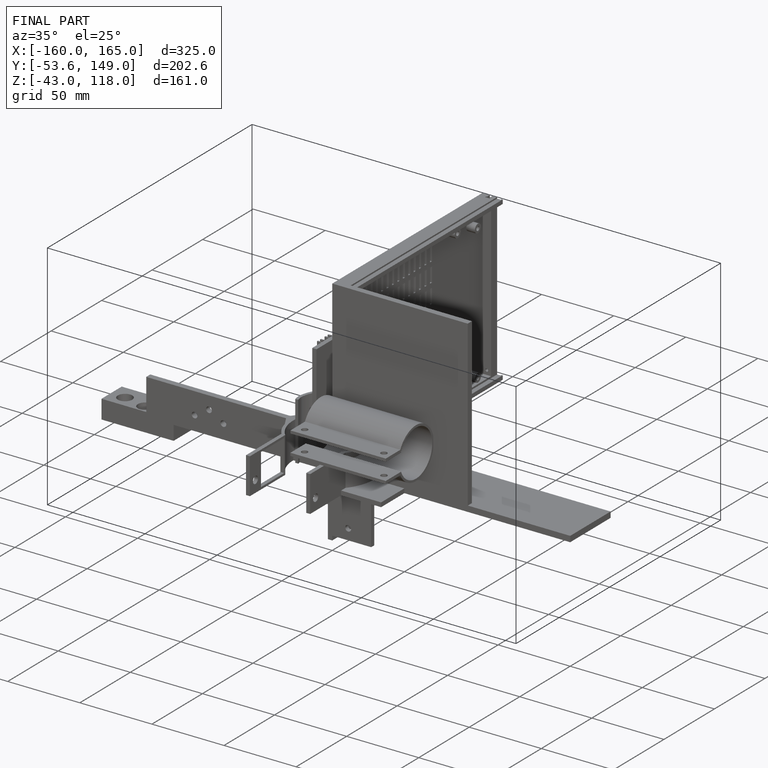
[diagram: finished part — iso view with bounding-box wireframe]
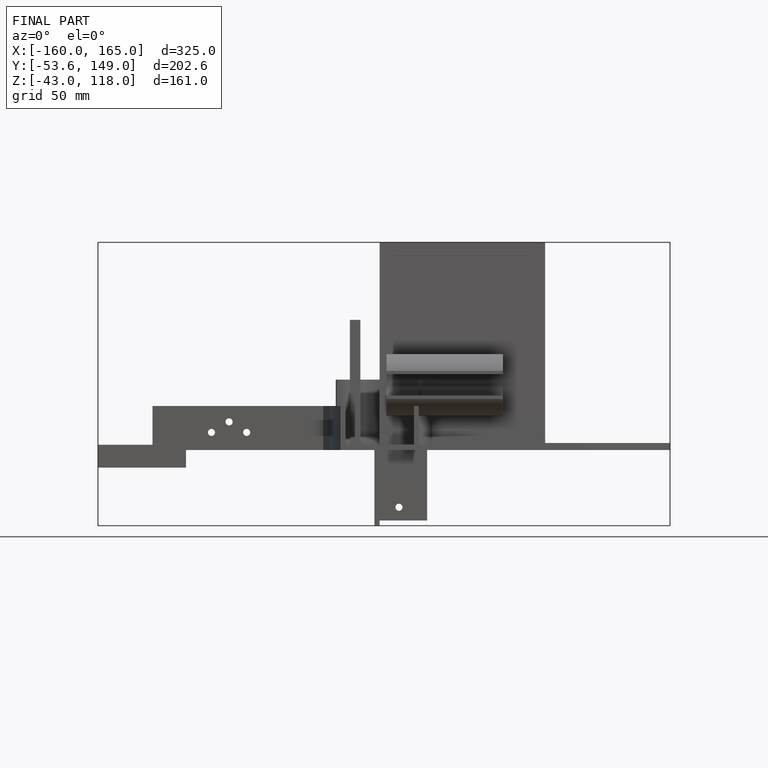
[diagram: finished part — front view with bounding-box wireframe]
